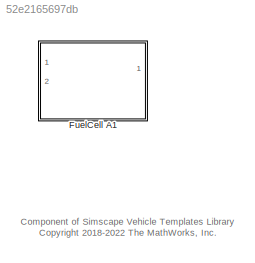
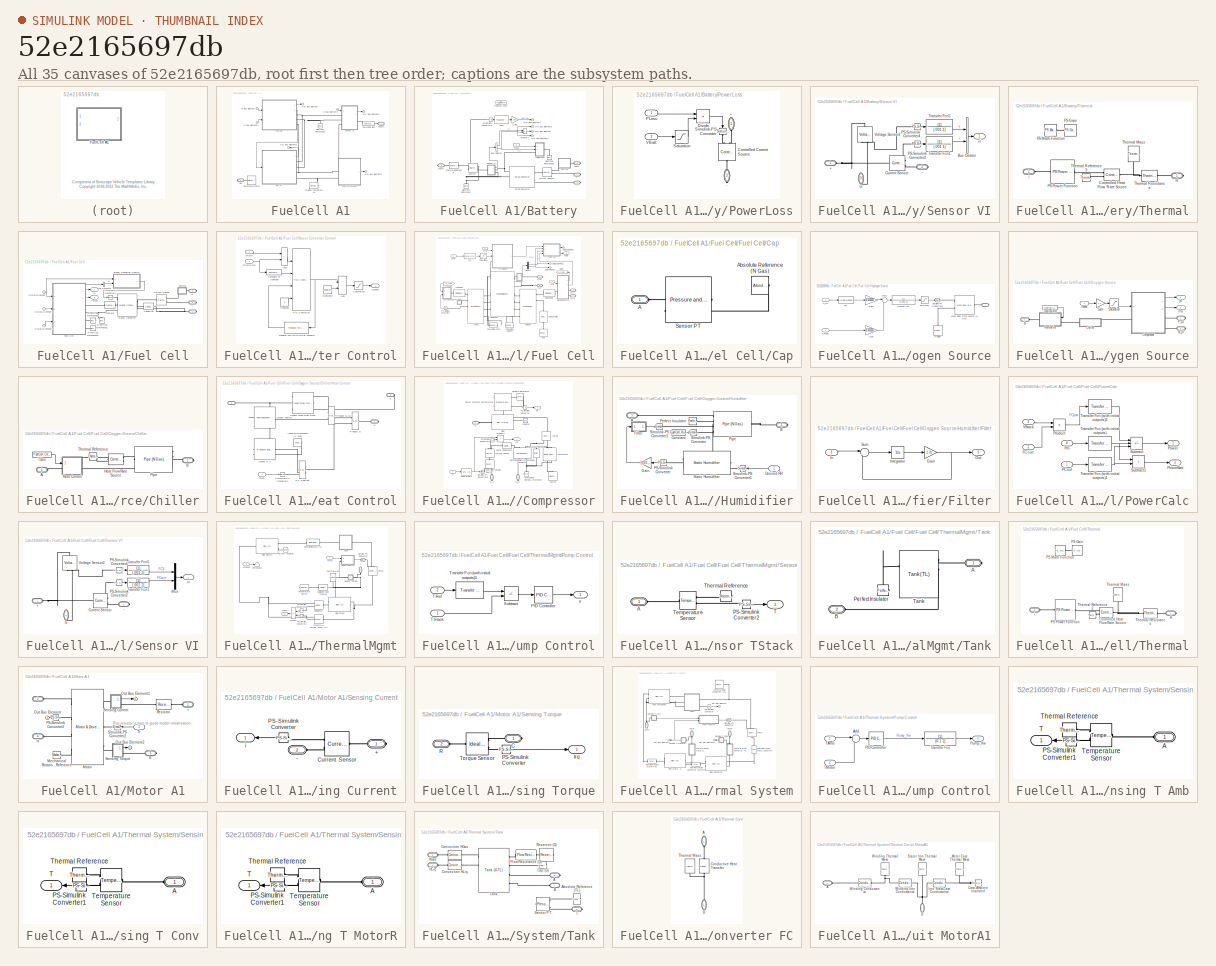
[diagram: thumbnail index - all 35 canvases of the model, root first then tree order]
MODEL slx_52e2165697db
KIND library
CONFIG AbsTol = auto
CONFIG EnableMultiTasking = off
CONFIG FixedStep = auto
CONFIG MaxStep = auto
CONFIG MinStep = auto
CONFIG RelTol = 1e-3
CONFIG SampleTimeConstraint = Unconstrained
CONFIG SolverName = VariableStepAuto
CONFIG StartTime = 0.0
CONFIG StopTime = 10.0
BLOCK [SubSystem] FuelCell A1
  Ports = [2, 1, 0, 0, 0, 1, 1]
  RequestExecContextInheritance = off
BLOCK [Reference] FuelCell A1/Ambient Temperature  REF=fl_lib/Thermal/Thermal Sources/Temperature Source
  Ports = [0, 0, 0, 0, 0, 1]
  SourceBlock = fl_lib/Thermal/Thermal Sources/Temperature Source
  SourceProductBaseCode = PW,SS,VE
  SourceType = Temperature Source
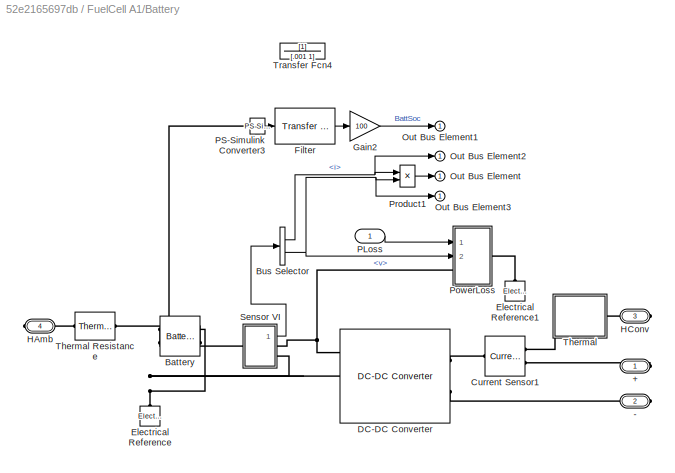
BLOCK [SubSystem] FuelCell A1/Battery
  Ports = [1, 1, 0, 0, 0, 0, 4]
  RequestExecContextInheritance = off
  VariantControl = 0
BLOCK [PMIOPort] FuelCell A1/Battery/+
  Side = Right
BLOCK [PMIOPort] FuelCell A1/Battery/-
  Port = 2
  Side = Right
BLOCK [Reference] FuelCell A1/Battery/Battery  REF=ee_lib/Sources/Battery
(Table-Based)
  NameLocation = top
  Ports = [0, 0, 0, 0, 0, 2, 2]
  SourceBlock = ee_lib/Sources/Battery\n(Table-Based)
  SourceProductBaseCode = PS
  SourceType = Battery\n(Table-Based)
BLOCK [BusSelector] FuelCell A1/Battery/Bus Selector
  OutputSignals = i,v
  Ports = [1, 2]
BLOCK [Reference] FuelCell A1/Battery/Current Sensor1  REF=fl_lib/Electrical/Electrical Sensors/Current Sensor
  Ports = [0, 0, 0, 0, 0, 1, 2]
  SourceBlock = fl_lib/Electrical/Electrical Sensors/Current Sensor
  SourceProductBaseCode = PW,SS,VE
  SourceType = Current Sensor
BLOCK [Reference] FuelCell A1/Battery/DC-DC Converter  REF=ee_lib/Semiconductors &
Converters/Converters/DC-DC Converter
  Ports = [0, 0, 0, 0, 0, 3, 2]
  SourceBlock = ee_lib/Semiconductors &\nConverters/Converters/DC-DC Converter
  SourceProductBaseCode = PS
  SourceType = DC-DC Converter
BLOCK [Reference] FuelCell A1/Battery/Electrical Reference  REF=fl_lib/Electrical/Electrical Elements/Electrical Reference
  NameLocation = right
  Ports = [0, 0, 0, 0, 0, 1]
  SourceBlock = fl_lib/Electrical/Electrical Elements/Electrical Reference
  SourceProductBaseCode = PW,SS,VE
  SourceType = Electrical Reference
BLOCK [Reference] FuelCell A1/Battery/Electrical Reference1  REF=fl_lib/Electrical/Electrical Elements/Electrical Reference
  NameLocation = right
  Ports = [0, 0, 0, 0, 0, 1]
  SourceBlock = fl_lib/Electrical/Electrical Elements/Electrical Reference
  SourceProductBaseCode = PW,SS,VE
  SourceType = Electrical Reference
BLOCK [Reference] FuelCell A1/Battery/Filter  REF=simulink_extras/Additional
Linear/Transfer Fcn
(with initial outputs)
  Ports = [1, 1]
  SourceBlock = simulink_extras/Additional\nLinear/Transfer Fcn\n(with initial outputs)
  SourceProductBaseCode = SL
  SourceType = Transfer Function with Initial Outputs
BLOCK [Gain] FuelCell A1/Battery/Gain2
  Gain = 100
BLOCK [PMIOPort] FuelCell A1/Battery/HAmb
  Port = 4
  Side = Right
BLOCK [PMIOPort] FuelCell A1/Battery/HConv
  Port = 3
  Side = Right
BLOCK [Outport] FuelCell A1/Battery/Out Bus Element
BLOCK [Outport] FuelCell A1/Battery/Out Bus Element1
BLOCK [Outport] FuelCell A1/Battery/Out Bus Element2
BLOCK [Outport] FuelCell A1/Battery/Out Bus Element3
BLOCK [Inport] FuelCell A1/Battery/PLoss
  NameLocation = top
BLOCK [Reference] FuelCell A1/Battery/PS-Simulink Converter3  REF=nesl_utility/PS-Simulink
Converter
  Ports = [0, 1, 0, 0, 0, 1]
  SourceBlock = nesl_utility/PS-Simulink\nConverter
  SourceProductBaseCode = SS,PW,VE
  SourceType = PS-Simulink\nConverter
BLOCK [SubSystem] FuelCell A1/Battery/PowerLoss
  Ports = [2, 0, 0, 0, 0, 1, 1]
  RequestExecContextInheritance = off
BLOCK [PMIOPort] FuelCell A1/Battery/PowerLoss/+
  NameLocation = right
  Side = Left
BLOCK [PMIOPort] FuelCell A1/Battery/PowerLoss/-
  NameLocation = left
  Port = 2
  Side = Right
BLOCK [Reference] FuelCell A1/Battery/PowerLoss/Controlled Current Source  REF=fl_lib/Electrical/Electrical Sources/Controlled Current
Source
  NameLocation = right
  Ports = [0, 0, 0, 0, 0, 1, 2]
  SourceBlock = fl_lib/Electrical/Electrical Sources/Controlled Current\nSource
  SourceProductBaseCode = PW,SS,VE
  SourceType = Controlled Current\nSource
BLOCK [Product] FuelCell A1/Battery/PowerLoss/Divide
  Inputs = */
  Ports = [2, 1]
BLOCK [Inport] FuelCell A1/Battery/PowerLoss/PLoss
BLOCK [Saturate] FuelCell A1/Battery/PowerLoss/Saturation
  LowerLimit = 200
  UpperLimit = inf
BLOCK [Reference] FuelCell A1/Battery/PowerLoss/Simulink-PS Converter  REF=nesl_utility/Simulink-PS
Converter
  NameLocation = left
  Ports = [1, 0, 0, 0, 0, 0, 1]
  SourceBlock = nesl_utility/Simulink-PS\nConverter
  SourceProductBaseCode = SS,PW,VE
  SourceType = Simulink-PS\nConverter
BLOCK [Inport] FuelCell A1/Battery/PowerLoss/VBatt
  Port = 2
BLOCK [Product] FuelCell A1/Battery/Product1
  Ports = [2, 1]
BLOCK [SubSystem] FuelCell A1/Battery/Sensor VI
  NameLocation = top
  Ports = [0, 1, 0, 0, 0, 1, 2]
  RequestExecContextInheritance = off
BLOCK [PMIOPort] FuelCell A1/Battery/Sensor VI/+
  Side = Left
BLOCK [PMIOPort] FuelCell A1/Battery/Sensor VI/-
  Port = 2
  Side = Right
BLOCK [BusCreator] FuelCell A1/Battery/Sensor VI/Bus Creator
  DisplayOption = bar
  InheritFromInputs = on
  Inputs = 2
  Ports = [2, 1]
BLOCK [Reference] FuelCell A1/Battery/Sensor VI/Current Sensor  REF=fl_lib/Electrical/Electrical Sensors/Current Sensor
  Ports = [0, 0, 0, 0, 0, 1, 2]
  SourceBlock = fl_lib/Electrical/Electrical Sensors/Current Sensor
  SourceProductBaseCode = PW,SS,VE
  SourceType = Current Sensor
BLOCK [PMIOPort] FuelCell A1/Battery/Sensor VI/G
  NameLocation = left
  Port = 3
  Side = Right
BLOCK [Reference] FuelCell A1/Battery/Sensor VI/PS-Simulink Converter2  REF=nesl_utility/PS-Simulink
Converter
  Ports = [0, 1, 0, 0, 0, 1]
  SourceBlock = nesl_utility/PS-Simulink\nConverter
  SourceProductBaseCode = SS,PW,VE
  SourceType = PS-Simulink\nConverter
BLOCK [Reference] FuelCell A1/Battery/Sensor VI/PS-Simulink Converter4  REF=nesl_utility/PS-Simulink
Converter
  Ports = [0, 1, 0, 0, 0, 1]
  SourceBlock = nesl_utility/PS-Simulink\nConverter
  SourceProductBaseCode = SS,PW,VE
  SourceType = PS-Simulink\nConverter
BLOCK [TransferFcn] FuelCell A1/Battery/Sensor VI/Transfer Fcn1
  Denominator = [.001 1]
BLOCK [TransferFcn] FuelCell A1/Battery/Sensor VI/Transfer Fcn5
  Denominator = [.001 1]
BLOCK [Reference] FuelCell A1/Battery/Sensor VI/Voltage Sensor2  REF=fl_lib/Electrical/Electrical Sensors/Voltage Sensor
  NameLocation = right
  Ports = [0, 0, 0, 0, 0, 1, 2]
  SourceBlock = fl_lib/Electrical/Electrical Sensors/Voltage Sensor
  SourceProductBaseCode = PW,SS,VE
  SourceType = Voltage Sensor
BLOCK [Outport] FuelCell A1/Battery/Sensor VI/vi
BLOCK [SubSystem] FuelCell A1/Battery/Thermal
  Ports = [0, 0, 0, 0, 0, 1, 1]
  RequestExecContextInheritance = off
BLOCK [Reference] FuelCell A1/Battery/Thermal Resistance  REF=fl_lib/Thermal/Thermal Elements/Thermal Resistance
  Ports = [0, 0, 0, 0, 0, 1, 1]
  SourceBlock = fl_lib/Thermal/Thermal Elements/Thermal Resistance
  SourceProductBaseCode = PW,SS,VE
  SourceType = Thermal Resistance
BLOCK [Reference] FuelCell A1/Battery/Thermal/Controlled Heat Flow Rate Source  REF=fl_lib/Thermal/Thermal Sources/Controlled Heat Flow
Rate Source
  Ports = [0, 0, 0, 0, 0, 1, 2]
  SourceBlock = fl_lib/Thermal/Thermal Sources/Controlled Heat Flow\nRate Source
  SourceProductBaseCode = PW,SS,VE
  SourceType = Controlled Heat Flow\nRate Source
BLOCK [PMIOPort] FuelCell A1/Battery/Thermal/H
  Side = Right
BLOCK [Reference] FuelCell A1/Battery/Thermal/PS Gain  REF=fl_lib/Physical Signals/Functions/PS Gain
  Commented = on
  Ports = [0, 0, 0, 0, 0, 1, 1]
  SourceBlock = fl_lib/Physical Signals/Functions/PS Gain
  SourceProductBaseCode = PW,SS,VE
  SourceType = PS Gain
BLOCK [Reference] FuelCell A1/Battery/Thermal/PS Math Function  REF=fl_lib/Physical Signals/Functions/PS Math Function
  Commented = on
  Ports = [0, 0, 0, 0, 0, 1, 1]
  SourceBlock = fl_lib/Physical Signals/Functions/PS Math Function
  SourceProductBaseCode = PW,SS,VE
  SourceType = PS Math Function
BLOCK [Reference] FuelCell A1/Battery/Thermal/PS Power Function  REF=customMath_lib/PS Power Function
  Ports = [0, 0, 0, 0, 0, 1, 1]
  SourceBlock = customMath_lib/PS Power Function
  SourceType = PS Power Function
BLOCK [Reference] FuelCell A1/Battery/Thermal/Thermal Mass  REF=fl_lib/Thermal/Thermal Elements/Thermal Mass
  NameLocation = right
  Ports = [0, 0, 0, 0, 0, 1]
  SourceBlock = fl_lib/Thermal/Thermal Elements/Thermal Mass
  SourceProductBaseCode = PW,SS,VE
  SourceType = Thermal Mass
BLOCK [Reference] FuelCell A1/Battery/Thermal/Thermal Reference3  REF=fl_lib/Thermal/Thermal Elements/Thermal Reference
  Ports = [0, 0, 0, 0, 0, 1]
  SourceBlock = fl_lib/Thermal/Thermal Elements/Thermal Reference
  SourceProductBaseCode = PW,SS,VE
  SourceType = Thermal Reference
BLOCK [Reference] FuelCell A1/Battery/Thermal/Thermal Resistance  REF=fl_lib/Thermal/Thermal Elements/Thermal Resistance
  Ports = [0, 0, 0, 0, 0, 1, 1]
  SourceBlock = fl_lib/Thermal/Thermal Elements/Thermal Resistance
  SourceProductBaseCode = PW,SS,VE
  SourceType = Thermal Resistance
BLOCK [PMIOPort] FuelCell A1/Battery/Thermal/i
  Port = 2
  Side = Left
BLOCK [TransferFcn] FuelCell A1/Battery/Transfer Fcn4
  Commented = on
  Denominator = [.001 1]
BLOCK [Reference] FuelCell A1/Electrical Reference1  REF=fl_lib/Electrical/Electrical Elements/Electrical Reference
  NameLocation = right
  Ports = [0, 0, 0, 0, 0, 1]
  SourceBlock = fl_lib/Electrical/Electrical Elements/Electrical Reference
  SourceProductBaseCode = PW,SS,VE
  SourceType = Electrical Reference
BLOCK [SubSystem] FuelCell A1/Fuel Cell
  Ports = [2, 2, 0, 0, 0, 0, 3]
  RequestExecContextInheritance = off
  VariantControl = 0
BLOCK [PMIOPort] FuelCell A1/Fuel Cell/+
  Side = Right
BLOCK [PMIOPort] FuelCell A1/Fuel Cell/-
  Port = 2
  Side = Right
BLOCK [Reference] FuelCell A1/Fuel Cell/Boost Converter  REF=ee_lib/Semiconductors &
Converters/Converters/Boost Converter
  Ports = [0, 0, 0, 0, 0, 3, 2]
  SourceBlock = ee_lib/Semiconductors &\nConverters/Converters/Boost Converter
  SourceProductBaseCode = PS
  SourceType = Boost Converter
BLOCK [SubSystem] FuelCell A1/Fuel Cell/Boost Converter Control
  NameLocation = top
  Ports = [2, 1]
  RequestExecContextInheritance = off
BLOCK [Sum] FuelCell A1/Fuel Cell/Boost Converter Control/Add
  IconShape = rectangular
  Ports = [2, 1]
BLOCK [Sum] FuelCell A1/Fuel Cell/Boost Converter Control/Add1
  IconShape = rectangular
  Inputs = -+
  Ports = [2, 1]
BLOCK [Reference] FuelCell A1/Fuel Cell/Boost Converter Control/Compare To Constant  REF=simulink/Logic and Bit
Operations/Compare
To Constant
  Ports = [1, 1]
  SourceBlock = simulink/Logic and Bit\nOperations/Compare\nTo Constant
  SourceProductBaseCode = SL
  SourceType = Compare To Constant
BLOCK [Constant] FuelCell A1/Fuel Cell/Boost Converter Control/Constant
  Value = 0
BLOCK [Constant] FuelCell A1/Fuel Cell/Boost Converter Control/Constant3
  Value = FuelCell.ConverterB.Control.Bias.Value
BLOCK [Inport] FuelCell A1/Fuel Cell/Boost Converter Control/FCcurr
  Port = 2
BLOCK [Inport] FuelCell A1/Fuel Cell/Boost Converter Control/FCcurrCMD
BLOCK [Reference] FuelCell A1/Fuel Cell/Boost Converter Control/PID Controller  REF=slpidlib/PID Controller
  Ports = [4, 1]
  SourceBlock = slpidlib/PID Controller
  SourceProductBaseCode = SL
  SourceType = PID 1dof
BLOCK [Saturate] FuelCell A1/Fuel Cell/Boost Converter Control/Saturation
  LowerLimit = 0
  UpperLimit = 1
  ZeroCross = off
BLOCK [Reference] FuelCell A1/Fuel Cell/Boost Converter Control/Transfer Fcn (with initial outputs)  REF=simulink_extras/Additional
Linear/Transfer Fcn
(with initial outputs)
  Ports = [1, 1]
  SourceBlock = simulink_extras/Additional\nLinear/Transfer Fcn\n(with initial outputs)
  SourceProductBaseCode = SL
  SourceType = Transfer Function with Initial Outputs
BLOCK [Outport] FuelCell A1/Fuel Cell/Boost Converter Control/u_boost
BLOCK [BusSelector] FuelCell A1/Fuel Cell/Bus Selector
  NameLocation = top
  OutputSignals = i
  Ports = [1, 1]
BLOCK [Reference] FuelCell A1/Fuel Cell/Capacitor  REF=fl_lib/Electrical/Electrical Elements/Capacitor
  Ports = [0, 0, 0, 0, 0, 1, 1]
  SourceBlock = fl_lib/Electrical/Electrical Elements/Capacitor
  SourceProductBaseCode = PW,SS,VE
  SourceType = Capacitor
BLOCK [Reference] FuelCell A1/Fuel Cell/Current Sensor  REF=fl_lib/Electrical/Electrical Sensors/Current Sensor
  NameLocation = top
  Ports = [0, 0, 0, 0, 0, 1, 2]
  SourceBlock = fl_lib/Electrical/Electrical Sensors/Current Sensor
  SourceProductBaseCode = PW,SS,VE
  SourceType = Current Sensor
BLOCK [Reference] FuelCell A1/Fuel Cell/Electrical Reference1  REF=fl_lib/Electrical/Electrical Elements/Electrical Reference
  NameLocation = right
  Ports = [0, 0, 0, 0, 0, 1]
  SourceBlock = fl_lib/Electrical/Electrical Elements/Electrical Reference
  SourceProductBaseCode = PW,SS,VE
  SourceType = Electrical Reference
BLOCK [Reference] FuelCell A1/Fuel Cell/Electrical Reference4  REF=fl_lib/Electrical/Electrical Elements/Electrical Reference
  NameLocation = top
  Ports = [0, 0, 0, 0, 0, 1]
  SourceBlock = fl_lib/Electrical/Electrical Elements/Electrical Reference
  SourceProductBaseCode = PW,SS,VE
  SourceType = Electrical Reference
BLOCK [Reference] FuelCell A1/Fuel Cell/Electrical Reference5  REF=fl_lib/Electrical/Electrical Elements/Electrical Reference
  NameLocation = top
  Ports = [0, 0, 0, 0, 0, 1]
  SourceBlock = fl_lib/Electrical/Electrical Elements/Electrical Reference
  SourceProductBaseCode = PW,SS,VE
  SourceType = Electrical Reference
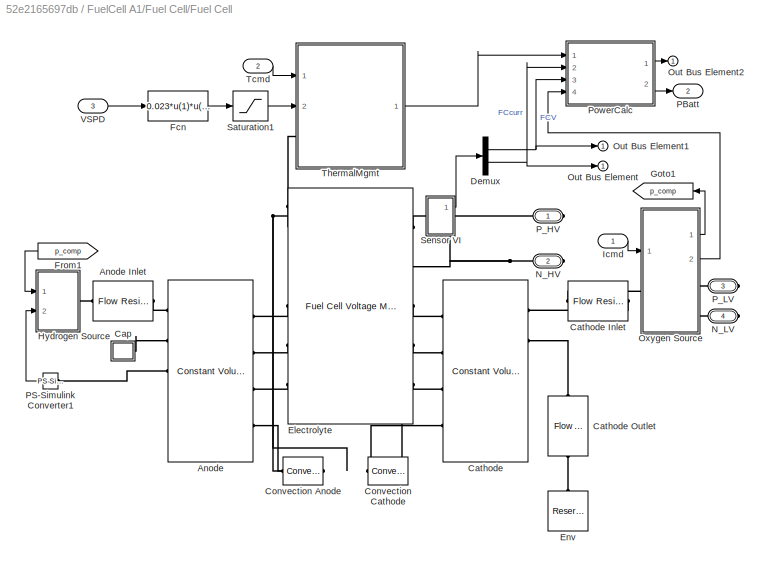
BLOCK [SubSystem] FuelCell A1/Fuel Cell/Fuel Cell
  Ports = [3, 2, 0, 0, 0, 0, 4]
  RequestExecContextInheritance = off
BLOCK [Reference] FuelCell A1/Fuel Cell/Fuel Cell/Anode  REF=GasN_lib/Constant Volume
Chamber (N Gas)
  Ports = [0, 0, 0, 0, 0, 4, 5]
  SourceBlock = GasN_lib/Constant Volume\nChamber (N Gas)
  SourceType = Constant Volume\nChamber (N Gas)
BLOCK [Reference] FuelCell A1/Fuel Cell/Fuel Cell/Anode Inlet  REF=GasN_lib/Flow Resistance (N
Gas)
  Ports = [0, 0, 0, 0, 0, 1, 1]
  SourceBlock = GasN_lib/Flow Resistance (N\nGas)
  SourceType = Flow Resistance (N\nGas)
BLOCK [SubSystem] FuelCell A1/Fuel Cell/Fuel Cell/Cap
  Ports = [0, 0, 0, 0, 0, 1]
  RequestExecContextInheritance = off
BLOCK [PMIOPort] FuelCell A1/Fuel Cell/Fuel Cell/Cap/A
  Side = Left
BLOCK [Reference] FuelCell A1/Fuel Cell/Fuel Cell/Cap/Absolute Reference (N Gas)  REF=GasN_lib/Absolute Reference
(N Gas)
  NameLocation = top
  Ports = [0, 0, 0, 0, 0, 1]
  SourceBlock = GasN_lib/Absolute Reference\n(N Gas)
  SourceType = Absolute Reference\n(N Gas)
BLOCK [Reference] FuelCell A1/Fuel Cell/Fuel Cell/Cap/Sensor P T  REF=GasN_lib/Pressure and
Temperature Sensor
(N Gas)
  Ports = [0, 0, 0, 0, 0, 1, 3]
  SourceBlock = GasN_lib/Pressure and\nTemperature Sensor\n(N Gas)
  SourceType = Pressure and\nTemperature Sensor\n(N Gas)
BLOCK [Reference] FuelCell A1/Fuel Cell/Fuel Cell/Cathode  REF=GasN_lib/Constant Volume
Chamber (N Gas)
  Ports = [0, 0, 0, 0, 0, 4, 5]
  SourceBlock = GasN_lib/Constant Volume\nChamber (N Gas)
  SourceType = Constant Volume\nChamber (N Gas)
BLOCK [Reference] FuelCell A1/Fuel Cell/Fuel Cell/Cathode Inlet  REF=GasN_lib/Flow Resistance (N
Gas)
  Ports = [0, 0, 0, 0, 0, 1, 1]
  SourceBlock = GasN_lib/Flow Resistance (N\nGas)
  SourceType = Flow Resistance (N\nGas)
BLOCK [Reference] FuelCell A1/Fuel Cell/Fuel Cell/Cathode Outlet  REF=GasN_lib/Flow Resistance (N
Gas)
  NameLocation = right
  Ports = [0, 0, 0, 0, 0, 1, 1]
  SourceBlock = GasN_lib/Flow Resistance (N\nGas)
  SourceType = Flow Resistance (N\nGas)
BLOCK [Reference] FuelCell A1/Fuel Cell/Fuel Cell/Convection Anode  REF=fl_lib/Thermal/Thermal Elements/Convective Heat
Transfer
  Ports = [0, 0, 0, 0, 0, 1, 1]
  SourceBlock = fl_lib/Thermal/Thermal Elements/Convective Heat\nTransfer
  SourceProductBaseCode = PW,SS,VE
  SourceType = Convective Heat\nTransfer
BLOCK [Reference] FuelCell A1/Fuel Cell/Fuel Cell/Convection Cathode  REF=fl_lib/Thermal/Thermal Elements/Convective Heat
Transfer
  Ports = [0, 0, 0, 0, 0, 1, 1]
  SourceBlock = fl_lib/Thermal/Thermal Elements/Convective Heat\nTransfer
  SourceProductBaseCode = PW,SS,VE
  SourceType = Convective Heat\nTransfer
BLOCK [Demux] FuelCell A1/Fuel Cell/Fuel Cell/Demux
  Outputs = 2
  Ports = [1, 2]
BLOCK [Reference] FuelCell A1/Fuel Cell/Fuel Cell/Electrolyte  REF=gn_supplement_lib/fuel_cell/Fuel Cell Voltage
Model
  Ports = [0, 0, 0, 0, 0, 5, 5]
  SourceBlock = gn_supplement_lib/fuel_cell/Fuel Cell Voltage\nModel
  SourceType = Fuel Cell Voltage\nModel
BLOCK [Reference] FuelCell A1/Fuel Cell/Fuel Cell/Env  REF=GasN_lib/Reservoir (N gas)
  NameLocation = right
  Ports = [0, 0, 0, 0, 0, 1]
  SourceBlock = GasN_lib/Reservoir (N gas)
  SourceType = Reservoir (N gas)
BLOCK [Fcn] FuelCell A1/Fuel Cell/Fuel Cell/Fcn
  Expr = 0.023*u(1)*u(1)-0.05*u(1)
BLOCK [From] FuelCell A1/Fuel Cell/Fuel Cell/From1
  GotoTag = p_comp
BLOCK [Goto] FuelCell A1/Fuel Cell/Fuel Cell/Goto1
  GotoTag = p_comp
BLOCK [SubSystem] FuelCell A1/Fuel Cell/Fuel Cell/Hydrogen Source
  Ports = [2, 0, 0, 0, 0, 0, 1]
  RequestExecContextInheritance = off
BLOCK [PMIOPort] FuelCell A1/Fuel Cell/Fuel Cell/Hydrogen Source/A
  Side = Right
BLOCK [Fcn] FuelCell A1/Fuel Cell/Fuel Cell/Hydrogen Source/Fcn
  Expr = (0.95*u+3000)
BLOCK [Gain] FuelCell A1/Fuel Cell/Fuel Cell/Hydrogen Source/Gain
  Gain = 1/101325
BLOCK [Gain] FuelCell A1/Fuel Cell/Fuel Cell/Hydrogen Source/Gain1
  Gain = 1/101325
BLOCK [Reference] FuelCell A1/Fuel Cell/Fuel Cell/Hydrogen Source/H2Side  REF=GasN_lib/Reservoir (N gas)
  NameLocation = left
  Ports = [0, 0, 0, 0, 0, 1]
  SourceBlock = GasN_lib/Reservoir (N gas)
  SourceType = Reservoir (N gas)
BLOCK [Reference] FuelCell A1/Fuel Cell/Fuel Cell/Hydrogen Source/Mass Flow Rate Source (N Gas)  REF=GasN_lib/Mass Flow Rate
Source (N Gas)
  Ports = [0, 0, 0, 0, 0, 2, 1]
  SourceBlock = GasN_lib/Mass Flow Rate\nSource (N Gas)
  SourceType = Mass Flow Rate\nSource (N Gas)
BLOCK [Inport] FuelCell A1/Fuel Cell/Fuel Cell/Hydrogen Source/P_IM
BLOCK [Inport] FuelCell A1/Fuel Cell/Fuel Cell/Hydrogen Source/P_anode
  Port = 2
BLOCK [Saturate] FuelCell A1/Fuel Cell/Fuel Cell/Hydrogen Source/Saturation
  LowerLimit = 0.000001
  UpperLimit = .1
  ZeroCross = off
BLOCK [Reference] FuelCell A1/Fuel Cell/Fuel Cell/Hydrogen Source/Simulink-PS Converter5  REF=nesl_utility/Simulink-PS
Converter
  Ports = [1, 0, 0, 0, 0, 0, 1]
  SourceBlock = nesl_utility/Simulink-PS\nConverter
  SourceProductBaseCode = SS,PW,VE
  SourceType = Simulink-PS\nConverter
BLOCK [Sum] FuelCell A1/Fuel Cell/Fuel Cell/Hydrogen Source/Sum2
  InputSameDT = on
  Inputs = |+-
  OutDataTypeStr = Inherit: Same as first input
  Ports = [2, 1]
  SaturateOnIntegerOverflow = on
BLOCK [TransferFcn] FuelCell A1/Fuel Cell/Fuel Cell/Hydrogen Source/Transfer Fcn
  Denominator = [0.001 1]
BLOCK [Inport] FuelCell A1/Fuel Cell/Fuel Cell/Icmd
BLOCK [PMIOPort] FuelCell A1/Fuel Cell/Fuel Cell/N_HV
  Port = 2
  Side = Right
BLOCK [PMIOPort] FuelCell A1/Fuel Cell/Fuel Cell/N_LV
  Port = 4
  Side = Right
BLOCK [Outport] FuelCell A1/Fuel Cell/Fuel Cell/Out Bus Element
BLOCK [Outport] FuelCell A1/Fuel Cell/Fuel Cell/Out Bus Element1
BLOCK [Outport] FuelCell A1/Fuel Cell/Fuel Cell/Out Bus Element2
BLOCK [SubSystem] FuelCell A1/Fuel Cell/Fuel Cell/Oxygen Source
  Ports = [1, 2, 0, 0, 0, 1, 2]
  RequestExecContextInheritance = off
BLOCK [PMIOPort] FuelCell A1/Fuel Cell/Fuel Cell/Oxygen Source/B
  Side = Left
BLOCK [SubSystem] FuelCell A1/Fuel Cell/Fuel Cell/Oxygen Source/Chiller
  Ports = [0, 0, 0, 0, 0, 1, 1]
  RequestExecContextInheritance = off
BLOCK [PMIOPort] FuelCell A1/Fuel Cell/Fuel Cell/Oxygen Source/Chiller/A
  Side = Left
BLOCK [PMIOPort] FuelCell A1/Fuel Cell/Fuel Cell/Oxygen Source/Chiller/B
  Port = 2
  Side = Right
BLOCK [SubSystem] FuelCell A1/Fuel Cell/Fuel Cell/Oxygen Source/Chiller/Heat Control
  Ports = [1, 0, 0, 0, 0, 1, 2]
  RequestExecContextInheritance = off
BLOCK [PMIOPort] FuelCell A1/Fuel Cell/Fuel Cell/Oxygen Source/Chiller/Heat Control/A
  Side = Left
BLOCK [Reference] FuelCell A1/Fuel Cell/Fuel Cell/Oxygen Source/Chiller/Heat Control/Absolute Reference (N Gas)  REF=GasN_lib/Absolute Reference
(N Gas)
  NameLocation = top
  Ports = [0, 0, 0, 0, 0, 1]
  SourceBlock = GasN_lib/Absolute Reference\n(N Gas)
  SourceType = Absolute Reference\n(N Gas)
BLOCK [PMIOPort] FuelCell A1/Fuel Cell/Fuel Cell/Oxygen Source/Chiller/Heat Control/B
  Port = 3
  Side = Right
BLOCK [Reference] FuelCell A1/Fuel Cell/Fuel Cell/Oxygen Source/Chiller/Heat Control/PS Subtract  REF=customMath_lib/PS Subtract
  NameLocation = top
  Ports = [0, 0, 0, 0, 0, 2, 1]
  SourceBlock = customMath_lib/PS Subtract
  SourceType = PS Subtract
BLOCK [Reference] FuelCell A1/Fuel Cell/Fuel Cell/Oxygen Source/Chiller/Heat Control/Product M cp  REF=customMath_lib/PS Custom Product
  Ports = [0, 0, 0, 0, 0, 2, 1]
  SourceBlock = customMath_lib/PS Custom Product
  SourceType = PS Custom Product
BLOCK [Reference] FuelCell A1/Fuel Cell/Fuel Cell/Oxygen Source/Chiller/Heat Control/Product Q  REF=customMath_lib/PS Custom Product
  Ports = [0, 0, 0, 0, 0, 2, 1]
  SourceBlock = customMath_lib/PS Custom Product
  SourceType = PS Custom Product
BLOCK [PMIOPort] FuelCell A1/Fuel Cell/Fuel Cell/Oxygen Source/Chiller/Heat Control/Q
  Port = 2
  Side = Right
BLOCK [Reference] FuelCell A1/Fuel Cell/Fuel Cell/Oxygen Source/Chiller/Heat Control/Sensor Mass Flow Rate  REF=GasN_lib/Mass Flow Rate
Sensor (N Gas)
  NameLocation = top
  Ports = [0, 0, 0, 0, 0, 1, 4]
  SourceBlock = GasN_lib/Mass Flow Rate\nSensor (N Gas)
  SourceType = Mass Flow Rate\nSensor (N Gas)
BLOCK [Reference] FuelCell A1/Fuel Cell/Fuel Cell/Oxygen Source/Chiller/Heat Control/Sensor P T  REF=GasN_lib/Pressure and
Temperature Sensor
(N Gas)
  Ports = [0, 0, 0, 0, 0, 1, 3]
  SourceBlock = GasN_lib/Pressure and\nTemperature Sensor\n(N Gas)
  SourceType = Pressure and\nTemperature Sensor\n(N Gas)
BLOCK [Reference] FuelCell A1/Fuel Cell/Fuel Cell/Oxygen Source/Chiller/Heat Control/Sensor Thermo  REF=GasN_lib/Thermodynamic
Properties Sensor (N
Gas)
  Ports = [0, 0, 0, 0, 0, 1, 4]
  SourceBlock = GasN_lib/Thermodynamic\nProperties Sensor (N\nGas)
  SourceType = Thermodynamic\nProperties Sensor (N\nGas)
BLOCK [Reference] FuelCell A1/Fuel Cell/Fuel Cell/Oxygen Source/Chiller/Heat Control/Simulink-PS Converter4  REF=nesl_utility/Simulink-PS
Converter
  Ports = [1, 0, 0, 0, 0, 0, 1]
  SourceBlock = nesl_utility/Simulink-PS\nConverter
  SourceProductBaseCode = SS,PW,VE
  SourceType = Simulink-PS\nConverter
BLOCK [Inport] FuelCell A1/Fuel Cell/Fuel Cell/Oxygen Source/Chiller/Heat Control/TDes
BLOCK [Reference] FuelCell A1/Fuel Cell/Fuel Cell/Oxygen Source/Chiller/Heat Flow Rate Source  REF=fl_lib/Thermal/Thermal Sources/Controlled Heat Flow
Rate Source
  NameLocation = top
  Ports = [0, 0, 0, 0, 0, 1, 2]
  SourceBlock = fl_lib/Thermal/Thermal Sources/Controlled Heat Flow\nRate Source
  SourceProductBaseCode = PW,SS,VE
  SourceType = Controlled Heat Flow\nRate Source
BLOCK [Reference] FuelCell A1/Fuel Cell/Fuel Cell/Oxygen Source/Chiller/Pipe  REF=GasN_lib/Pipe (N Gas)
  Ports = [0, 0, 0, 0, 0, 4, 1]
  SourceBlock = GasN_lib/Pipe (N Gas)
  SourceType = Pipe (N Gas)
BLOCK [Constant] FuelCell A1/Fuel Cell/Fuel Cell/Oxygen Source/Chiller/Tdes
  Value = FuelCell.Chiller.Tdesired.Value
BLOCK [Reference] FuelCell A1/Fuel Cell/Fuel Cell/Oxygen Source/Chiller/Thermal Reference  REF=fl_lib/Thermal/Thermal Elements/Thermal Reference
  Ports = [0, 0, 0, 0, 0, 1]
  SourceBlock = fl_lib/Thermal/Thermal Elements/Thermal Reference
  SourceProductBaseCode = PW,SS,VE
  SourceType = Thermal Reference
BLOCK [SubSystem] FuelCell A1/Fuel Cell/Fuel Cell/Oxygen Source/Compressor
  Ports = [1, 2, 0, 0, 0, 1, 2]
  RequestExecContextInheritance = off
BLOCK [Reference] FuelCell A1/Fuel Cell/Fuel Cell/Oxygen Source/Compressor/Absolute Reference  REF=GasN_lib/Absolute Reference
(N Gas)
  NameLocation = top
  Ports = [0, 0, 0, 0, 0, 1]
  SourceBlock = GasN_lib/Absolute Reference\n(N Gas)
  SourceType = Absolute Reference\n(N Gas)
BLOCK [PMIOPort] FuelCell A1/Fuel Cell/Fuel Cell/Oxygen Source/Compressor/B
  NameLocation = top
  Side = Left
BLOCK [Reference] FuelCell A1/Fuel Cell/Fuel Cell/Oxygen Source/Compressor/Compressor  REF=GasN_lib/Basic Compressor (N
Gas)
  NameLocation = right
  Ports = [0, 0, 0, 0, 0, 2, 2]
  SourceBlock = GasN_lib/Basic Compressor (N\nGas)
  SourceType = Basic Compressor (N\nGas)
BLOCK [Reference] FuelCell A1/Fuel Cell/Fuel Cell/Oxygen Source/Compressor/Controlled Voltage Source  REF=fl_lib/Electrical/Electrical Sources/Controlled Voltage
Source
  NameLocation = right
  Ports = [0, 0, 0, 0, 0, 1, 2]
  SourceBlock = fl_lib/Electrical/Electrical Sources/Controlled Voltage\nSource
  SourceProductBaseCode = PW,SS,VE
  SourceType = Controlled Voltage\nSource
BLOCK [Reference] FuelCell A1/Fuel Cell/Fuel Cell/Oxygen Source/Compressor/Current Sensor  REF=fl_lib/Electrical/Electrical Sensors/Current Sensor
  NameLocation = right
  Ports = [0, 0, 0, 0, 0, 1, 2]
  SourceBlock = fl_lib/Electrical/Electrical Sensors/Current Sensor
  SourceProductBaseCode = PW,SS,VE
  SourceType = Current Sensor
BLOCK [Fcn] FuelCell A1/Fuel Cell/Fuel Cell/Oxygen Source/Compressor/Feedforward
  Expr = 0.5*u + 0.1
BLOCK [Reference] FuelCell A1/Fuel Cell/Fuel Cell/Oxygen Source/Compressor/Inertia  REF=fl_lib/Mechanical/Rotational Elements/Inertia
  NameLocation = top
  Ports = [0, 0, 0, 0, 0, 1]
  SourceBlock = fl_lib/Mechanical/Rotational Elements/Inertia
  SourceProductBaseCode = PW,SS,VE
  SourceType = Inertia
BLOCK [Reference] FuelCell A1/Fuel Cell/Fuel Cell/Oxygen Source/Compressor/Insulator  REF=fl_lib/Thermal/Thermal Elements/Perfect Insulator
  Ports = [0, 0, 0, 0, 0, 1]
  SourceBlock = fl_lib/Thermal/Thermal Elements/Perfect Insulator
  SourceProductBaseCode = PW,SS,VE
  SourceType = Perfect Insulator
BLOCK [Reference] FuelCell A1/Fuel Cell/Fuel Cell/Oxygen Source/Compressor/Mechanical Rotational Reference3  REF=fl_lib/Mechanical/Rotational Elements/Mechanical
Rotational Reference
  NameLocation = right
  Ports = [0, 0, 0, 0, 0, 1]
  SourceBlock = fl_lib/Mechanical/Rotational Elements/Mechanical\nRotational Reference
  SourceProductBaseCode = PW,SS,VE
  SourceType = Mechanical\nRotational Reference
BLOCK [PMIOPort] FuelCell A1/Fuel Cell/Fuel Cell/Oxygen Source/Compressor/N_LV
  NameLocation = left
  Port = 3
  Side = Right
BLOCK [Reference] FuelCell A1/Fuel Cell/Fuel Cell/Oxygen Source/Compressor/PS-Simulink Converter  REF=nesl_utility/PS-Simulink
Converter
  Ports = [0, 1, 0, 0, 0, 1]
  SourceBlock = nesl_utility/PS-Simulink\nConverter
  SourceProductBaseCode = SS,PW,VE
  SourceType = PS-Simulink\nConverter
BLOCK [Reference] FuelCell A1/Fuel Cell/Fuel Cell/Oxygen Source/Compressor/PS-Simulink Converter1  REF=nesl_utility/PS-Simulink
Converter
  Ports = [0, 1, 0, 0, 0, 1]
  SourceBlock = nesl_utility/PS-Simulink\nConverter
  SourceProductBaseCode = SS,PW,VE
  SourceType = PS-Simulink\nConverter
BLOCK [PMIOPort] FuelCell A1/Fuel Cell/Fuel Cell/Oxygen Source/Compressor/P_LV
  NameLocation = right
  Port = 2
  Side = Right
BLOCK [Reference] FuelCell A1/Fuel Cell/Fuel Cell/Oxygen Source/Compressor/Pipe  REF=GasN_lib/Pipe (N Gas)
  Ports = [0, 0, 0, 0, 0, 4, 1]
  SourceBlock = GasN_lib/Pipe (N Gas)
  SourceType = Pipe (N Gas)
BLOCK [Outport] FuelCell A1/Fuel Cell/Fuel Cell/Oxygen Source/Compressor/Pm
  Port = 2
BLOCK [Product] FuelCell A1/Fuel Cell/Fuel Cell/Oxygen Source/Compressor/Product1
  Ports = [2, 1]
BLOCK [Reference] FuelCell A1/Fuel Cell/Fuel Cell/Oxygen Source/Compressor/Rotational Damper  REF=fl_lib/Mechanical/Rotational Elements/Rotational Damper
  NameLocation = right
  Ports = [0, 0, 0, 0, 0, 1, 1]
  SourceBlock = fl_lib/Mechanical/Rotational Elements/Rotational Damper
  SourceProductBaseCode = PW,SS,VE
  SourceType = Rotational Damper
BLOCK [Reference] FuelCell A1/Fuel Cell/Fuel Cell/Oxygen Source/Compressor/Rotational Electromechanical Converter  REF=fl_lib/Electrical/Electrical Elements/Rotational
Electromechanical
Converter
  NameLocation = right
  Ports = [0, 0, 0, 0, 0, 2, 2]
  SourceBlock = fl_lib/Electrical/Electrical Elements/Rotational\nElectromechanical\nConverter
  SourceProductBaseCode = PW,SS,VE
  SourceType = Rotational\nElectromechanical\nConverter
BLOCK [Reference] FuelCell A1/Fuel Cell/Fuel Cell/Oxygen Source/Compressor/Rotor Resistance  REF=fl_lib/Electrical/Electrical Elements/Resistor
  Ports = [0, 0, 0, 0, 0, 1, 1]
  SourceBlock = fl_lib/Electrical/Electrical Elements/Resistor
  SourceProductBaseCode = PW,SS,VE
  SourceType = Resistor
  Tag = Factory Generic
BLOCK [Reference] FuelCell A1/Fuel Cell/Fuel Cell/Oxygen Source/Compressor/Sensor Pressure Temperature  REF=GasN_lib/Pressure and
Temperature Sensor
(N Gas)
  Ports = [0, 0, 0, 0, 0, 1, 3]
  SourceBlock = GasN_lib/Pressure and\nTemperature Sensor\n(N Gas)
  SourceType = Pressure and\nTemperature Sensor\n(N Gas)
BLOCK [Reference] FuelCell A1/Fuel Cell/Fuel Cell/Oxygen Source/Compressor/Simulink-PS Converter6  REF=nesl_utility/Simulink-PS
Converter
  Ports = [1, 0, 0, 0, 0, 0, 1]
  SourceBlock = nesl_utility/Simulink-PS\nConverter
  SourceProductBaseCode = SS,PW,VE
  SourceType = Simulink-PS\nConverter
BLOCK [Reference] FuelCell A1/Fuel Cell/Fuel Cell/Oxygen Source/Compressor/Source  REF=GasN_lib/Reservoir (N gas)
  NameLocation = right
  Ports = [0, 0, 0, 0, 0, 1]
  SourceBlock = GasN_lib/Reservoir (N gas)
  SourceType = Reservoir (N gas)
BLOCK [Inport] FuelCell A1/Fuel Cell/Fuel Cell/Oxygen Source/Compressor/V
BLOCK [Outport] FuelCell A1/Fuel Cell/Fuel Cell/Oxygen Source/Compressor/pT
BLOCK [Constant] FuelCell A1/Fuel Cell/Fuel Cell/Oxygen Source/Desired RH
  Value = FuelCell.Humidifier.relativeHdes.Value
BLOCK [Gain] FuelCell A1/Fuel Cell/Fuel Cell/Oxygen Source/Gain
  Gain = 1.1
BLOCK [SubSystem] FuelCell A1/Fuel Cell/Fuel Cell/Oxygen Source/Humidifier
  Ports = [1, 0, 0, 0, 0, 1, 1]
  RequestExecContextInheritance = off
BLOCK [PMIOPort] FuelCell A1/Fuel Cell/Fuel Cell/Oxygen Source/Humidifier/A
  NameLocation = top
  Side = Left
BLOCK [PMIOPort] FuelCell A1/Fuel Cell/Fuel Cell/Oxygen Source/Humidifier/B
  Port = 2
  Side = Right
BLOCK [Constant] FuelCell A1/Fuel Cell/Fuel Cell/Oxygen Source/Humidifier/Constant
  Value = FuelCell.Humidifier.Tin.Value
BLOCK [Inport] FuelCell A1/Fuel Cell/Fuel Cell/Oxygen Source/Humidifier/Desired RH
BLOCK [SubSystem] FuelCell A1/Fuel Cell/Fuel Cell/Oxygen Source/Humidifier/Filter
  Ports = [1, 1]
  RequestExecContextInheritance = off
BLOCK [Gain] FuelCell A1/Fuel Cell/Fuel Cell/Oxygen Source/Humidifier/Filter/Gain
  Gain = 1./b
BLOCK [Inport] FuelCell A1/Fuel Cell/Fuel Cell/Oxygen Source/Humidifier/Filter/In
BLOCK [Integrator] FuelCell A1/Fuel Cell/Fuel Cell/Oxygen Source/Humidifier/Filter/Integrator
  InitialCondition = x_initial.*b
  Ports = [1, 1]
BLOCK [Outport] FuelCell A1/Fuel Cell/Fuel Cell/Oxygen Source/Humidifier/Filter/Out
  VectorParamsAs1DForOutWhenUnconnected = off
BLOCK [Sum] FuelCell A1/Fuel Cell/Fuel Cell/Oxygen Source/Humidifier/Filter/Sum
  InputSameDT = on
  Inputs = |+-
  OutDataTypeStr = Inherit: Same as first input
  Ports = [2, 1]
  SaturateOnIntegerOverflow = on
BLOCK [Gain] FuelCell A1/Fuel Cell/Fuel Cell/Oxygen Source/Humidifier/Gain
  Gain = [0;0;0;1]
BLOCK [Reference] FuelCell A1/Fuel Cell/Fuel Cell/Oxygen Source/Humidifier/PS-Simulink Converter  REF=nesl_utility/PS-Simulink
Converter
  Ports = [0, 1, 0, 0, 0, 1]
  SourceBlock = nesl_utility/PS-Simulink\nConverter
  SourceProductBaseCode = SS,PW,VE
  SourceType = PS-Simulink\nConverter
BLOCK [Reference] FuelCell A1/Fuel Cell/Fuel Cell/Oxygen Source/Humidifier/Perfect Insulator  REF=fl_lib/Thermal/Thermal Elements/Perfect Insulator
  Ports = [0, 0, 0, 0, 0, 1]
  SourceBlock = fl_lib/Thermal/Thermal Elements/Perfect Insulator
  SourceProductBaseCode = PW,SS,VE
  SourceType = Perfect Insulator
BLOCK [Reference] FuelCell A1/Fuel Cell/Fuel Cell/Oxygen Source/Humidifier/Pipe  REF=GasN_lib/Pipe (N Gas)
  NameLocation = top
  Ports = [0, 0, 0, 0, 0, 4, 1]
  SourceBlock = GasN_lib/Pipe (N Gas)
  SourceType = Pipe (N Gas)
BLOCK [Reference] FuelCell A1/Fuel Cell/Fuel Cell/Oxygen Source/Humidifier/Simulink-PS Converter  REF=nesl_utility/Simulink-PS
Converter
  Ports = [1, 0, 0, 0, 0, 0, 1]
  SourceBlock = nesl_utility/Simulink-PS\nConverter
  SourceProductBaseCode = SS,PW,VE
  SourceType = Simulink-PS\nConverter
BLOCK [Reference] FuelCell A1/Fuel Cell/Fuel Cell/Oxygen Source/Humidifier/Simulink-PS Converter1  REF=nesl_utility/Simulink-PS
Converter
  Ports = [1, 0, 0, 0, 0, 0, 1]
  SourceBlock = nesl_utility/Simulink-PS\nConverter
  SourceProductBaseCode = SS,PW,VE
  SourceType = Simulink-PS\nConverter
BLOCK [Reference] FuelCell A1/Fuel Cell/Fuel Cell/Oxygen Source/Humidifier/Simulink-PS Converter6  REF=nesl_utility/Simulink-PS
Converter
  Ports = [1, 0, 0, 0, 0, 0, 1]
  SourceBlock = nesl_utility/Simulink-PS\nConverter
  SourceProductBaseCode = SS,PW,VE
  SourceType = Simulink-PS\nConverter
BLOCK [Reference] FuelCell A1/Fuel Cell/Fuel Cell/Oxygen Source/Humidifier/Static Humidifier  REF=gn_supplement_lib/Static Humidifier
  Ports = [0, 0, 0, 0, 0, 2, 1]
  SourceBlock = gn_supplement_lib/Static Humidifier
  SourceType = Static Humidifier
BLOCK [Inport] FuelCell A1/Fuel Cell/Fuel Cell/Oxygen Source/Icmd
BLOCK [PMIOPort] FuelCell A1/Fuel Cell/Fuel Cell/Oxygen Source/N_LV
  Port = 3
  Side = Right
BLOCK [PMIOPort] FuelCell A1/Fuel Cell/Fuel Cell/Oxygen Source/P_LV
  Port = 2
  Side = Right
BLOCK [Outport] FuelCell A1/Fuel Cell/Fuel Cell/Oxygen Source/Pm
  Port = 2
BLOCK [Saturate] FuelCell A1/Fuel Cell/Fuel Cell/Oxygen Source/Saturation
  LowerLimit = 0
  UpperLimit = inf
  ZeroCross = off
BLOCK [Outport] FuelCell A1/Fuel Cell/Fuel Cell/Oxygen Source/pT
BLOCK [Outport] FuelCell A1/Fuel Cell/Fuel Cell/PBatt
  Port = 2
BLOCK [Reference] FuelCell A1/Fuel Cell/Fuel Cell/PS-Simulink Converter1  REF=nesl_utility/PS-Simulink
Converter
  Ports = [0, 1, 0, 0, 0, 1]
  SourceBlock = nesl_utility/PS-Simulink\nConverter
  SourceProductBaseCode = SS,PW,VE
  SourceType = PS-Simulink\nConverter
BLOCK [PMIOPort] FuelCell A1/Fuel Cell/Fuel Cell/P_HV
  Side = Right
BLOCK [PMIOPort] FuelCell A1/Fuel Cell/Fuel Cell/P_LV
  Port = 3
  Side = Right
BLOCK [SubSystem] FuelCell A1/Fuel Cell/Fuel Cell/PowerCalc
  Ports = [4, 2]
  RequestExecContextInheritance = off
BLOCK [Inport] FuelCell A1/Fuel Cell/Fuel Cell/PowerCalc/FCcurr
  Port = 2
BLOCK [Inport] FuelCell A1/Fuel Cell/Fuel Cell/PowerCalc/PCool
BLOCK [Inport] FuelCell A1/Fuel Cell/Fuel Cell/PowerCalc/Pm
  Port = 4
BLOCK [Outport] FuelCell A1/Fuel Cell/Fuel Cell/PowerCalc/Power
BLOCK [Outport] FuelCell A1/Fuel Cell/Fuel Cell/PowerCalc/PowerBatt
  Port = 2
BLOCK [Product] FuelCell A1/Fuel Cell/Fuel Cell/PowerCalc/Product
  Ports = [2, 1]
BLOCK [Sum] FuelCell A1/Fuel Cell/Fuel Cell/PowerCalc/Subtract
  IconShape = rectangular
  Inputs = +--
  Ports = [3, 1]
BLOCK [Sum] FuelCell A1/Fuel Cell/Fuel Cell/PowerCalc/Subtract1
  IconShape = rectangular
  Ports = [2, 1]
BLOCK [Reference] FuelCell A1/Fuel Cell/Fuel Cell/PowerCalc/Transfer Fcn (with initial outputs)  REF=simulink_extras/Additional
Linear/Transfer Fcn
(with initial outputs)
  Ports = [1, 1]
  SourceBlock = simulink_extras/Additional\nLinear/Transfer Fcn\n(with initial outputs)
  SourceProductBaseCode = SL
  SourceType = Transfer Function with Initial Outputs
BLOCK [Reference] FuelCell A1/Fuel Cell/Fuel Cell/PowerCalc/Transfer Fcn (with initial outputs)1  REF=simulink_extras/Additional
Linear/Transfer Fcn
(with initial outputs)
  Ports = [1, 1]
  SourceBlock = simulink_extras/Additional\nLinear/Transfer Fcn\n(with initial outputs)
  SourceProductBaseCode = SL
  SourceType = Transfer Function with Initial Outputs
BLOCK [Reference] FuelCell A1/Fuel Cell/Fuel Cell/PowerCalc/Transfer Fcn (with initial outputs)2  REF=simulink_extras/Additional
Linear/Transfer Fcn
(with initial outputs)
  Ports = [1, 1]
  SourceBlock = simulink_extras/Additional\nLinear/Transfer Fcn\n(with initial outputs)
  SourceProductBaseCode = SL
  SourceType = Transfer Function with Initial Outputs
BLOCK [Inport] FuelCell A1/Fuel Cell/Fuel Cell/PowerCalc/VStack
  Port = 3
BLOCK [Saturate] FuelCell A1/Fuel Cell/Fuel Cell/Saturation1
  LowerLimit = 0
  UpperLimit = inf
  ZeroCross = off
BLOCK [SubSystem] FuelCell A1/Fuel Cell/Fuel Cell/Sensor VI
  NameLocation = top
  Ports = [0, 1, 0, 0, 0, 1, 2]
  RequestExecContextInheritance = off
BLOCK [PMIOPort] FuelCell A1/Fuel Cell/Fuel Cell/Sensor VI/+
  Side = Left
BLOCK [PMIOPort] FuelCell A1/Fuel Cell/Fuel Cell/Sensor VI/-
  Port = 2
  Side = Right
BLOCK [Reference] FuelCell A1/Fuel Cell/Fuel Cell/Sensor VI/Current Sensor  REF=fl_lib/Electrical/Electrical Sensors/Current Sensor
  Ports = [0, 0, 0, 0, 0, 1, 2]
  SourceBlock = fl_lib/Electrical/Electrical Sensors/Current Sensor
  SourceProductBaseCode = PW,SS,VE
  SourceType = Current Sensor
BLOCK [PMIOPort] FuelCell A1/Fuel Cell/Fuel Cell/Sensor VI/G
  NameLocation = left
  Port = 3
  Side = Right
BLOCK [Mux] FuelCell A1/Fuel Cell/Fuel Cell/Sensor VI/Mux
  DisplayOption = bar
  Inputs = 2
  Ports = [2, 1]
BLOCK [Reference] FuelCell A1/Fuel Cell/Fuel Cell/Sensor VI/PS-Simulink Converter2  REF=nesl_utility/PS-Simulink
Converter
  Ports = [0, 1, 0, 0, 0, 1]
  SourceBlock = nesl_utility/PS-Simulink\nConverter
  SourceProductBaseCode = SS,PW,VE
  SourceType = PS-Simulink\nConverter
BLOCK [Reference] FuelCell A1/Fuel Cell/Fuel Cell/Sensor VI/PS-Simulink Converter4  REF=nesl_utility/PS-Simulink
Converter
  Ports = [0, 1, 0, 0, 0, 1]
  SourceBlock = nesl_utility/PS-Simulink\nConverter
  SourceProductBaseCode = SS,PW,VE
  SourceType = PS-Simulink\nConverter
BLOCK [TransferFcn] FuelCell A1/Fuel Cell/Fuel Cell/Sensor VI/Transfer Fcn1
  Denominator = [.001 1]
BLOCK [TransferFcn] FuelCell A1/Fuel Cell/Fuel Cell/Sensor VI/Transfer Fcn5
  Denominator = [.001 1]
BLOCK [Reference] FuelCell A1/Fuel Cell/Fuel Cell/Sensor VI/Voltage Sensor2  REF=fl_lib/Electrical/Electrical Sensors/Voltage Sensor
  NameLocation = right
  Ports = [0, 0, 0, 0, 0, 1, 2]
  SourceBlock = fl_lib/Electrical/Electrical Sensors/Voltage Sensor
  SourceProductBaseCode = PW,SS,VE
  SourceType = Voltage Sensor
BLOCK [Outport] FuelCell A1/Fuel Cell/Fuel Cell/Sensor VI/vi
BLOCK [Inport] FuelCell A1/Fuel Cell/Fuel Cell/Tcmd
  NameLocation = top
  Port = 2
BLOCK [SubSystem] FuelCell A1/Fuel Cell/Fuel Cell/ThermalMgmt
  Ports = [2, 1, 0, 0, 0, 1]
  RequestExecContextInheritance = off
BLOCK [PMIOPort] FuelCell A1/Fuel Cell/Fuel Cell/ThermalMgmt/A
  NameLocation = left
  Side = Left
BLOCK [Inport] FuelCell A1/Fuel Cell/Fuel Cell/ThermalMgmt/Airspeed
  Port = 2
BLOCK [Reference] FuelCell A1/Fuel Cell/Fuel Cell/ThermalMgmt/Flow Resistance (TL)  REF=fl_lib/Thermal Liquid/Elements/Flow Resistance (TL)
  NameLocation = top
  Ports = [0, 0, 0, 0, 0, 1, 1]
  SourceBlock = fl_lib/Thermal Liquid/Elements/Flow Resistance (TL)
  SourceProductBaseCode = PW,SS,VE
  SourceType = Flow Resistance (TL)
BLOCK [Reference] FuelCell A1/Fuel Cell/Fuel Cell/ThermalMgmt/FlowSense  REF=fl_lib/Thermal Liquid/Sensors/Volumetric Flow Rate
Sensor (TL)
  Ports = [0, 0, 0, 0, 0, 1, 2]
  SourceBlock = fl_lib/Thermal Liquid/Sensors/Volumetric Flow Rate\nSensor (TL)
  SourceProductBaseCode = PW,SS,VE
  SourceType = Volumetric Flow Rate\nSensor (TL)
BLOCK [Outport] FuelCell A1/Fuel Cell/Fuel Cell/ThermalMgmt/PCool
BLOCK [Reference] FuelCell A1/Fuel Cell/Fuel Cell/ThermalMgmt/PS-Simulink Converter1  REF=nesl_utility/PS-Simulink
Converter
  NameLocation = top
  Ports = [0, 1, 0, 0, 0, 1]
  SourceBlock = nesl_utility/PS-Simulink\nConverter
  SourceProductBaseCode = SS,PW,VE
  SourceType = PS-Simulink\nConverter
BLOCK [Reference] FuelCell A1/Fuel Cell/Fuel Cell/ThermalMgmt/PS-Simulink Converter3  REF=nesl_utility/PS-Simulink
Converter
  NameLocation = top
  Ports = [0, 1, 0, 0, 0, 1]
  SourceBlock = nesl_utility/PS-Simulink\nConverter
  SourceProductBaseCode = SS,PW,VE
  SourceType = PS-Simulink\nConverter
BLOCK [Reference] FuelCell A1/Fuel Cell/Fuel Cell/ThermalMgmt/Perfect Insulator  REF=fl_lib/Thermal/Thermal Elements/Perfect Insulator
  NameLocation = top
  Ports = [0, 0, 0, 0, 0, 1]
  SourceBlock = fl_lib/Thermal/Thermal Elements/Perfect Insulator
  SourceProductBaseCode = PW,SS,VE
  SourceType = Perfect Insulator
BLOCK [Reference] FuelCell A1/Fuel Cell/Fuel Cell/ThermalMgmt/Pipe Return  REF=fl_lib/Thermal Liquid/Elements/Pipe (TL)
  NameLocation = top
  Ports = [0, 0, 0, 0, 0, 2, 1]
  SourceBlock = fl_lib/Thermal Liquid/Elements/Pipe (TL)
  SourceProductBaseCode = PW,SS,VE
  SourceType = Pipe (TL)
BLOCK [Reference] FuelCell A1/Fuel Cell/Fuel Cell/ThermalMgmt/Pipe Stack  REF=fl_lib/Thermal Liquid/Elements/Pipe (TL)
  Ports = [0, 0, 0, 0, 0, 2, 1]
  SourceBlock = fl_lib/Thermal Liquid/Elements/Pipe (TL)
  SourceProductBaseCode = PW,SS,VE
  SourceType = Pipe (TL)
BLOCK [Reference] FuelCell A1/Fuel Cell/Fuel Cell/ThermalMgmt/Pressure & Temperature Sensor (TL)  REF=fl_lib/Thermal Liquid/Sensors/Pressure &
Temperature Sensor
(TL)
  Ports = [0, 0, 0, 0, 0, 1, 3]
  SourceBlock = fl_lib/Thermal Liquid/Sensors/Pressure &\nTemperature Sensor\n(TL)
  SourceProductBaseCode = PW,SS,VE
  SourceType = Pressure &\nTemperature Sensor\n(TL)
BLOCK [Product] FuelCell A1/Fuel Cell/Fuel Cell/ThermalMgmt/Product
  Ports = [2, 1]
BLOCK [Reference] FuelCell A1/Fuel Cell/Fuel Cell/ThermalMgmt/Pump  REF=fl_lib/Thermal Liquid/Sources/Controlled Mass Flow
Rate Source (TL)
  NameLocation = right
  Ports = [0, 0, 0, 0, 0, 2, 1]
  SourceBlock = fl_lib/Thermal Liquid/Sources/Controlled Mass Flow\nRate Source (TL)
  SourceProductBaseCode = PW,SS,VE
  SourceType = Controlled Mass Flow\nRate Source (TL)
BLOCK [SubSystem] FuelCell A1/Fuel Cell/Fuel Cell/ThermalMgmt/Pump Control
  Ports = [2, 1]
  RequestExecContextInheritance = off
BLOCK [Reference] FuelCell A1/Fuel Cell/Fuel Cell/ThermalMgmt/Pump Control/PID Controller  REF=slpidlib/PID Controller
  Ports = [1, 1]
  SourceBlock = slpidlib/PID Controller
  SourceProductBaseCode = SL
  SourceType = PID 1dof
BLOCK [Sum] FuelCell A1/Fuel Cell/Fuel Cell/ThermalMgmt/Pump Control/Subtract
  IconShape = rectangular
  Inputs = +-
  Ports = [2, 1]
BLOCK [Inport] FuelCell A1/Fuel Cell/Fuel Cell/ThermalMgmt/Pump Control/TRef
  Port = 2
BLOCK [Inport] FuelCell A1/Fuel Cell/Fuel Cell/ThermalMgmt/Pump Control/TStack
BLOCK [Reference] FuelCell A1/Fuel Cell/Fuel Cell/ThermalMgmt/Pump Control/Transfer Fcn (with initial outputs)1  REF=simulink_extras/Additional
Linear/Transfer Fcn
(with initial outputs)
  Ports = [1, 1]
  SourceBlock = simulink_extras/Additional\nLinear/Transfer Fcn\n(with initial outputs)
  SourceProductBaseCode = SL
  SourceType = Transfer Function with Initial Outputs
BLOCK [Outport] FuelCell A1/Fuel Cell/Fuel Cell/ThermalMgmt/Pump Control/y
BLOCK [Reference] FuelCell A1/Fuel Cell/Fuel Cell/ThermalMgmt/Radiative Heat Transfer  REF=fl_lib/Thermal/Thermal Elements/Radiative Heat
Transfer
  Ports = [0, 0, 0, 0, 0, 1, 1]
  SourceBlock = fl_lib/Thermal/Thermal Elements/Radiative Heat\nTransfer
  SourceProductBaseCode = PW,SS,VE
  SourceType = Radiative Heat\nTransfer
BLOCK [SubSystem] FuelCell A1/Fuel Cell/Fuel Cell/ThermalMgmt/Sensor TStack
  Ports = [0, 1, 0, 0, 0, 1]
  RequestExecContextInheritance = off
BLOCK [PMIOPort] FuelCell A1/Fuel Cell/Fuel Cell/ThermalMgmt/Sensor TStack/A
  Side = Left
BLOCK [Reference] FuelCell A1/Fuel Cell/Fuel Cell/ThermalMgmt/Sensor TStack/PS-Simulink Converter2  REF=nesl_utility/PS-Simulink
Converter
  Ports = [0, 1, 0, 0, 0, 1]
  SourceBlock = nesl_utility/PS-Simulink\nConverter
  SourceProductBaseCode = SS,PW,VE
  SourceType = PS-Simulink\nConverter
BLOCK [Outport] FuelCell A1/Fuel Cell/Fuel Cell/ThermalMgmt/Sensor TStack/T
BLOCK [Reference] FuelCell A1/Fuel Cell/Fuel Cell/ThermalMgmt/Sensor TStack/Temperature Sensor  REF=fl_lib/Thermal/Thermal Sensors/Temperature Sensor
  Ports = [0, 0, 0, 0, 0, 1, 2]
  SourceBlock = fl_lib/Thermal/Thermal Sensors/Temperature Sensor
  SourceProductBaseCode = PW,SS,VE
  SourceType = Temperature Sensor
BLOCK [Reference] FuelCell A1/Fuel Cell/Fuel Cell/ThermalMgmt/Sensor TStack/Thermal Reference  REF=fl_lib/Thermal/Thermal Elements/Thermal Reference
  NameLocation = top
  Ports = [0, 0, 0, 0, 0, 1]
  SourceBlock = fl_lib/Thermal/Thermal Elements/Thermal Reference
  SourceProductBaseCode = PW,SS,VE
  SourceType = Thermal Reference
BLOCK [Reference] FuelCell A1/Fuel Cell/Fuel Cell/ThermalMgmt/Simulink-PS Converter  REF=nesl_utility/Simulink-PS
Converter
  Ports = [1, 0, 0, 0, 0, 0, 1]
  SourceBlock = nesl_utility/Simulink-PS\nConverter
  SourceProductBaseCode = SS,PW,VE
  SourceType = Simulink-PS\nConverter
BLOCK [SubSystem] FuelCell A1/Fuel Cell/Fuel Cell/ThermalMgmt/Tank
  Ports = [0, 0, 0, 0, 0, 1, 1]
  RequestExecContextInheritance = off
BLOCK [PMIOPort] FuelCell A1/Fuel Cell/Fuel Cell/ThermalMgmt/Tank/A
  Side = Right
BLOCK [PMIOPort] FuelCell A1/Fuel Cell/Fuel Cell/ThermalMgmt/Tank/B
  Port = 2
  Side = Left
BLOCK [Reference] FuelCell A1/Fuel Cell/Fuel Cell/ThermalMgmt/Tank/Perfect Insulator  REF=fl_lib/Thermal/Thermal Elements/Perfect Insulator
  Ports = [0, 0, 0, 0, 0, 1]
  SourceBlock = fl_lib/Thermal/Thermal Elements/Perfect Insulator
  SourceProductBaseCode = PW,SS,VE
  SourceType = Perfect Insulator
BLOCK [Reference] FuelCell A1/Fuel Cell/Fuel Cell/ThermalMgmt/Tank/Tank  REF=SimscapeFluids_lib/Thermal Liquid/Tanks & Accumulators/Tank (TL)
  Ports = [0, 0, 0, 0, 0, 4, 2]
  SourceBlock = SimscapeFluids_lib/Thermal Liquid/Tanks & Accumulators/Tank (TL)
  SourceProductBaseCode = SH
  SourceType = Tank (TL)
BLOCK [Inport] FuelCell A1/Fuel Cell/Fuel Cell/ThermalMgmt/Tcmd
BLOCK [Reference] FuelCell A1/Fuel Cell/Fuel Cell/ThermalMgmt/Temperature Source  REF=fl_lib/Thermal/Thermal Sources/Temperature Source
  Ports = [0, 0, 0, 0, 0, 1]
  SourceBlock = fl_lib/Thermal/Thermal Sources/Temperature Source
  SourceProductBaseCode = PW,SS,VE
  SourceType = Temperature Source
BLOCK [Terminator] FuelCell A1/Fuel Cell/Fuel Cell/ThermalMgmt/Terminator
BLOCK [Reference] FuelCell A1/Fuel Cell/Fuel Cell/ThermalMgmt/Thermal Mass  REF=fl_lib/Thermal/Thermal Elements/Thermal Mass
  NameLocation = left
  Ports = [0, 0, 0, 0, 0, 1]
  SourceBlock = fl_lib/Thermal/Thermal Elements/Thermal Mass
  SourceProductBaseCode = PW,SS,VE
  SourceType = Thermal Mass
BLOCK [Inport] FuelCell A1/Fuel Cell/Fuel Cell/VSPD
  Port = 3
BLOCK [PMIOPort] FuelCell A1/Fuel Cell/H
  NameLocation = top
  Port = 3
  Side = Right
BLOCK [Inport] FuelCell A1/Fuel Cell/In Bus Element
BLOCK [Inport] FuelCell A1/Fuel Cell/In Bus Element1
BLOCK [Inport] FuelCell A1/Fuel Cell/In Bus Element2
  Port = 2
BLOCK [Outport] FuelCell A1/Fuel Cell/PBatt
  Port = 2
BLOCK [Reference] FuelCell A1/Fuel Cell/Resistor  REF=fl_lib/Electrical/Electrical Elements/Resistor
  Ports = [0, 0, 0, 0, 0, 1, 1]
  SourceBlock = fl_lib/Electrical/Electrical Elements/Resistor
  SourceProductBaseCode = PW,SS,VE
  SourceType = Resistor
BLOCK [Reference] FuelCell A1/Fuel Cell/Simulink-PS Converter2  REF=nesl_utility/Simulink-PS
Converter
  Ports = [1, 0, 0, 0, 0, 0, 1]
  SourceBlock = nesl_utility/Simulink-PS\nConverter
  SourceProductBaseCode = SS,PW,VE
  SourceType = Simulink-PS\nConverter
BLOCK [SubSystem] FuelCell A1/Fuel Cell/Thermal
  NameLocation = top
  Ports = [0, 0, 0, 0, 0, 1, 1]
  RequestExecContextInheritance = off
BLOCK [Reference] FuelCell A1/Fuel Cell/Thermal/Controlled Heat Flow Rate Source  REF=fl_lib/Thermal/Thermal Sources/Controlled Heat Flow
Rate Source
  Ports = [0, 0, 0, 0, 0, 1, 2]
  SourceBlock = fl_lib/Thermal/Thermal Sources/Controlled Heat Flow\nRate Source
  SourceProductBaseCode = PW,SS,VE
  SourceType = Controlled Heat Flow\nRate Source
BLOCK [PMIOPort] FuelCell A1/Fuel Cell/Thermal/H
  Side = Right
BLOCK [Reference] FuelCell A1/Fuel Cell/Thermal/PS Gain  REF=fl_lib/Physical Signals/Functions/PS Gain
  Commented = on
  Ports = [0, 0, 0, 0, 0, 1, 1]
  SourceBlock = fl_lib/Physical Signals/Functions/PS Gain
  SourceProductBaseCode = PW,SS,VE
  SourceType = PS Gain
BLOCK [Reference] FuelCell A1/Fuel Cell/Thermal/PS Math Function  REF=fl_lib/Physical Signals/Functions/PS Math Function
  Commented = on
  Ports = [0, 0, 0, 0, 0, 1, 1]
  SourceBlock = fl_lib/Physical Signals/Functions/PS Math Function
  SourceProductBaseCode = PW,SS,VE
  SourceType = PS Math Function
BLOCK [Reference] FuelCell A1/Fuel Cell/Thermal/PS Power Function  REF=customMath_lib/PS Power Function
  Ports = [0, 0, 0, 0, 0, 1, 1]
  SourceBlock = customMath_lib/PS Power Function
  SourceType = PS Power Function
BLOCK [Reference] FuelCell A1/Fuel Cell/Thermal/Thermal Mass  REF=fl_lib/Thermal/Thermal Elements/Thermal Mass
  NameLocation = right
  Ports = [0, 0, 0, 0, 0, 1]
  SourceBlock = fl_lib/Thermal/Thermal Elements/Thermal Mass
  SourceProductBaseCode = PW,SS,VE
  SourceType = Thermal Mass
BLOCK [Reference] FuelCell A1/Fuel Cell/Thermal/Thermal Reference2  REF=fl_lib/Thermal/Thermal Elements/Thermal Reference
  Ports = [0, 0, 0, 0, 0, 1]
  SourceBlock = fl_lib/Thermal/Thermal Elements/Thermal Reference
  SourceProductBaseCode = PW,SS,VE
  SourceType = Thermal Reference
BLOCK [Reference] FuelCell A1/Fuel Cell/Thermal/Thermal Resistance  REF=fl_lib/Thermal/Thermal Elements/Thermal Resistance
  Ports = [0, 0, 0, 0, 0, 1, 1]
  SourceBlock = fl_lib/Thermal/Thermal Elements/Thermal Resistance
  SourceProductBaseCode = PW,SS,VE
  SourceType = Thermal Resistance
BLOCK [PMIOPort] FuelCell A1/Fuel Cell/Thermal/i
  Port = 2
  Side = Left
BLOCK [Outport] FuelCell A1/Fuel Cell/m
BLOCK [Inport] FuelCell A1/In Bus Element
BLOCK [Inport] FuelCell A1/In Bus Element1
  Port = 2
BLOCK [Inport] FuelCell A1/In Bus Element4
BLOCK [SubSystem] FuelCell A1/Motor A1
  Ports = [1, 1, 0, 0, 0, 3, 1]
  RequestExecContextInheritance = off
BLOCK [PMIOPort] FuelCell A1/Motor A1/+
  Side = Left
BLOCK [PMIOPort] FuelCell A1/Motor A1/-
  Port = 2
  Side = Left
BLOCK [PMIOPort] FuelCell A1/Motor A1/H
  Port = 4
  Side = Left
BLOCK [Reference] FuelCell A1/Motor A1/Mechanical Rotational Reference  REF=fl_lib/Mechanical/Rotational Elements/Mechanical
Rotational Reference
  Ports = [0, 0, 0, 0, 0, 1]
  SourceBlock = fl_lib/Mechanical/Rotational Elements/Mechanical\nRotational Reference
  SourceProductBaseCode = PW,SS,VE
  SourceType = Mechanical\nRotational Reference
BLOCK [Reference] FuelCell A1/Motor A1/Motor  REF=ee_lib/Electromechanical/Motor & Drive
(System Level)
  Ports = [0, 0, 0, 0, 0, 3, 4]
  SourceBlock = ee_lib/Electromechanical/Motor & Drive\n(System Level)
  SourceProductBaseCode = PS
  SourceType = Motor & Drive\n(System Level)
BLOCK [Outport] FuelCell A1/Motor A1/Out Bus Element
BLOCK [Outport] FuelCell A1/Motor A1/Out Bus Element1
BLOCK [Outport] FuelCell A1/Motor A1/Out Bus Element2
BLOCK [Reference] FuelCell A1/Motor A1/PS-Simulink Converter2  REF=nesl_utility/PS-Simulink
Converter
  NameLocation = top
  Ports = [0, 1, 0, 0, 0, 1]
  SourceBlock = nesl_utility/PS-Simulink\nConverter
  SourceProductBaseCode = SS,PW,VE
  SourceType = PS-Simulink\nConverter
BLOCK [PMIOPort] FuelCell A1/Motor A1/R
  Port = 3
  Side = Right
BLOCK [Reference] FuelCell A1/Motor A1/Resistor  REF=fl_lib/Electrical/Electrical Elements/Resistor
  Ports = [0, 0, 0, 0, 0, 1, 1]
  SourceBlock = fl_lib/Electrical/Electrical Elements/Resistor
  SourceProductBaseCode = PW,SS,VE
  SourceType = Resistor
BLOCK [SubSystem] FuelCell A1/Motor A1/Sensing Current
  Ports = [0, 1, 0, 0, 0, 1, 1]
  RequestExecContextInheritance = off
BLOCK [PMIOPort] FuelCell A1/Motor A1/Sensing Current/+
  Side = Right
BLOCK [PMIOPort] FuelCell A1/Motor A1/Sensing Current/-
  Port = 2
  Side = Left
BLOCK [Reference] FuelCell A1/Motor A1/Sensing Current/Current Sensor  REF=fl_lib/Electrical/Electrical Sensors/Current Sensor
  Ports = [0, 0, 0, 0, 0, 1, 2]
  SourceBlock = fl_lib/Electrical/Electrical Sensors/Current Sensor
  SourceProductBaseCode = PW,SS,VE
  SourceType = Current Sensor
BLOCK [Reference] FuelCell A1/Motor A1/Sensing Current/PS-Simulink Converter  REF=nesl_utility/PS-Simulink
Converter
  Ports = [0, 1, 0, 0, 0, 1]
  SourceBlock = nesl_utility/PS-Simulink\nConverter
  SourceProductBaseCode = SS,PW,VE
  SourceType = PS-Simulink\nConverter
BLOCK [Outport] FuelCell A1/Motor A1/Sensing Current/i
BLOCK [SubSystem] FuelCell A1/Motor A1/Sensing Torque
  Ports = [0, 1, 0, 0, 0, 1, 1]
  RequestExecContextInheritance = off
BLOCK [PMIOPort] FuelCell A1/Motor A1/Sensing Torque/C
  Side = Right
BLOCK [Reference] FuelCell A1/Motor A1/Sensing Torque/PS-Simulink Converter  REF=nesl_utility/PS-Simulink
Converter
  Ports = [0, 1, 0, 0, 0, 1]
  SourceBlock = nesl_utility/PS-Simulink\nConverter
  SourceProductBaseCode = SS,PW,VE
  SourceType = PS-Simulink\nConverter
BLOCK [PMIOPort] FuelCell A1/Motor A1/Sensing Torque/R
  Port = 2
  Side = Left
BLOCK [Reference] FuelCell A1/Motor A1/Sensing Torque/Torque Sensor  REF=fl_lib/Mechanical/Mechanical Sensors/Ideal Torque Sensor
  Ports = [0, 0, 0, 0, 0, 1, 2]
  SourceBlock = fl_lib/Mechanical/Mechanical Sensors/Ideal Torque Sensor
  SourceProductBaseCode = PW,SS,VE
  SourceType = Ideal Torque Sensor
BLOCK [Outport] FuelCell A1/Motor A1/Sensing Torque/trq
BLOCK [Reference] FuelCell A1/Motor A1/Simulink-PS Converter2  REF=nesl_utility/Simulink-PS
Converter
  NameLocation = top
  Ports = [1, 0, 0, 0, 0, 0, 1]
  SourceBlock = nesl_utility/Simulink-PS\nConverter
  SourceProductBaseCode = SS,PW,VE
  SourceType = Simulink-PS\nConverter
BLOCK [Inport] FuelCell A1/Motor A1/Tr
BLOCK [Outport] FuelCell A1/Out Bus Element
BLOCK [Outport] FuelCell A1/Out Bus Element1
BLOCK [Outport] FuelCell A1/Out Bus Element2
BLOCK [Outport] FuelCell A1/Out Bus Element3
BLOCK [PMIOPort] FuelCell A1/Ref
  Port = 2
  Side = Right
BLOCK [Reference] FuelCell A1/Reference Frame  REF=sm_lib/Frames and
Transforms/Reference
Frame
  Ports = [0, 0, 0, 0, 0, 0, 1]
  SourceBlock = sm_lib/Frames and\nTransforms/Reference\nFrame
  SourceProductBaseCode = MS
  SourceType = Reference\nFrame
BLOCK [PMIOPort] FuelCell A1/Shafts
  Side = Left
BLOCK [SimscapeBus] FuelCell A1/Simscape Bus
  HierarchyStrings = ShaftA1
  Ports = [0, 0, 0, 0, 0, 1, 1]
BLOCK [SubSystem] FuelCell A1/Thermal System
  Ports = [0, 1, 0, 0, 0, 3]
  RequestExecContextInheritance = off
BLOCK [Reference] FuelCell A1/Thermal System/Flow Restriction Converter MotorR  REF=fl_lib/Thermal Liquid/Elements/Local Restriction
(TL)
  Ports = [0, 0, 0, 0, 0, 1, 1]
  SourceBlock = fl_lib/Thermal Liquid/Elements/Local Restriction\n(TL)
  SourceProductBaseCode = PW,SS,VE
  SourceType = Local Restriction\n(TL)
BLOCK [Reference] FuelCell A1/Thermal System/Flow Restriction MotorR HX  REF=fl_lib/Thermal Liquid/Elements/Local Restriction
(TL)
  Ports = [0, 0, 0, 0, 0, 1, 1]
  SourceBlock = fl_lib/Thermal Liquid/Elements/Local Restriction\n(TL)
  SourceProductBaseCode = PW,SS,VE
  SourceType = Local Restriction\n(TL)
BLOCK [Reference] FuelCell A1/Thermal System/Flow Restriction Pump Converter  REF=fl_lib/Thermal Liquid/Elements/Local Restriction
(TL)
  NameLocation = left
  Ports = [0, 0, 0, 0, 0, 1, 1]
  SourceBlock = fl_lib/Thermal Liquid/Elements/Local Restriction\n(TL)
  SourceProductBaseCode = PW,SS,VE
  SourceType = Local Restriction\n(TL)
BLOCK [PMIOPort] FuelCell A1/Thermal System/HAmb
  NameLocation = right
  Port = 3
  Side = Left
BLOCK [PMIOPort] FuelCell A1/Thermal System/HConv
  NameLocation = left
  Port = 2
  Side = Left
BLOCK [PMIOPort] FuelCell A1/Thermal System/HMot
  NameLocation = right
  Side = Left
BLOCK [Reference] FuelCell A1/Thermal System/Heat Exchanger  REF=SimscapeFluids_lib/Thermal Liquid/Pipes & Fittings/Pipe (TL)
  NameLocation = top
  Ports = [0, 0, 0, 0, 0, 2, 1]
  SourceBlock = SimscapeFluids_lib/Thermal Liquid/Pipes & Fittings/Pipe (TL)
  SourceProductBaseCode = SH
  SourceType = Pipe (TL)
BLOCK [Outport] FuelCell A1/Thermal System/Out Bus Element
BLOCK [Outport] FuelCell A1/Thermal System/Out Bus Element1
BLOCK [Outport] FuelCell A1/Thermal System/Out Bus Element2
BLOCK [Reference] FuelCell A1/Thermal System/PS-Simulink Converter  REF=nesl_utility/PS-Simulink
Converter
  Ports = [0, 1, 0, 0, 0, 1]
  SourceBlock = nesl_utility/PS-Simulink\nConverter
  SourceProductBaseCode = SS,PW,VE
  SourceType = PS-Simulink\nConverter
BLOCK [Reference] FuelCell A1/Thermal System/Pipe Converter  REF=SimscapeFluids_lib/Thermal Liquid/Pipes & Fittings/Pipe (TL)
  Ports = [0, 0, 0, 0, 0, 2, 1]
  SourceBlock = SimscapeFluids_lib/Thermal Liquid/Pipes & Fittings/Pipe (TL)
  SourceProductBaseCode = SH
  SourceType = Pipe (TL)
BLOCK [Reference] FuelCell A1/Thermal System/Pipe Motor A1  REF=SimscapeFluids_lib/Thermal Liquid/Pipes & Fittings/Pipe (TL)
  Ports = [0, 0, 0, 0, 0, 2, 1]
  SourceBlock = SimscapeFluids_lib/Thermal Liquid/Pipes & Fittings/Pipe (TL)
  SourceProductBaseCode = SH
  SourceType = Pipe (TL)
BLOCK [Reference] FuelCell A1/Thermal System/Pump  REF=fl_lib/Thermal Liquid/Sources/Controlled Mass Flow
Rate Source (TL)
  NameLocation = left
  Ports = [0, 0, 0, 0, 0, 2, 1]
  SourceBlock = fl_lib/Thermal Liquid/Sources/Controlled Mass Flow\nRate Source (TL)
  SourceProductBaseCode = PW,SS,VE
  SourceType = Controlled Mass Flow\nRate Source (TL)
BLOCK [SubSystem] FuelCell A1/Thermal System/Pump Control
  Ports = [2, 1]
  RequestExecContextInheritance = off
BLOCK [Sum] FuelCell A1/Thermal System/Pump Control/Add
  Inputs = |-+
  Ports = [2, 1]
BLOCK [Reference] FuelCell A1/Thermal System/Pump Control/PID Controller  REF=slpidlib/PID Controller
  Ports = [1, 1]
  SourceBlock = slpidlib/PID Controller
  SourceProductBaseCode = SL
  SourceType = PID 1dof
BLOCK [Outport] FuelCell A1/Thermal System/Pump Control/Pump_flw
BLOCK [Inport] FuelCell A1/Thermal System/Pump Control/TAmb
BLOCK [Inport] FuelCell A1/Thermal System/Pump Control/TMotor
  Port = 2
BLOCK [TransferFcn] FuelCell A1/Thermal System/Pump Control/Transfer Fcn
  Denominator = [0.1 1]
BLOCK [SubSystem] FuelCell A1/Thermal System/Sensing T Amb
  Ports = [0, 1, 0, 0, 0, 1]
  RequestExecContextInheritance = off
BLOCK [PMIOPort] FuelCell A1/Thermal System/Sensing T Amb/A
  Side = Left
BLOCK [Reference] FuelCell A1/Thermal System/Sensing T Amb/PS-Simulink Converter1  REF=nesl_utility/PS-Simulink
Converter
  NameLocation = top
  Ports = [0, 1, 0, 0, 0, 1]
  SourceBlock = nesl_utility/PS-Simulink\nConverter
  SourceProductBaseCode = SS,PW,VE
  SourceType = PS-Simulink\nConverter
BLOCK [Outport] FuelCell A1/Thermal System/Sensing T Amb/T
BLOCK [Reference] FuelCell A1/Thermal System/Sensing T Amb/Temperature Sensor  REF=fl_lib/Thermal/Thermal Sensors/Temperature Sensor
  Ports = [0, 0, 0, 0, 0, 1, 2]
  SourceBlock = fl_lib/Thermal/Thermal Sensors/Temperature Sensor
  SourceProductBaseCode = PW,SS,VE
  SourceType = Temperature Sensor
BLOCK [Reference] FuelCell A1/Thermal System/Sensing T Amb/Thermal Reference  REF=fl_lib/Thermal/Thermal Elements/Thermal Reference
  Ports = [0, 0, 0, 0, 0, 1]
  SourceBlock = fl_lib/Thermal/Thermal Elements/Thermal Reference
  SourceProductBaseCode = PW,SS,VE
  SourceType = Thermal Reference
BLOCK [SubSystem] FuelCell A1/Thermal System/Sensing T Conv
  Ports = [0, 1, 0, 0, 0, 1]
  RequestExecContextInheritance = off
BLOCK [PMIOPort] FuelCell A1/Thermal System/Sensing T Conv/A
  Side = Left
BLOCK [Reference] FuelCell A1/Thermal System/Sensing T Conv/PS-Simulink Converter1  REF=nesl_utility/PS-Simulink
Converter
  NameLocation = top
  Ports = [0, 1, 0, 0, 0, 1]
  SourceBlock = nesl_utility/PS-Simulink\nConverter
  SourceProductBaseCode = SS,PW,VE
  SourceType = PS-Simulink\nConverter
BLOCK [Outport] FuelCell A1/Thermal System/Sensing T Conv/T
BLOCK [Reference] FuelCell A1/Thermal System/Sensing T Conv/Temperature Sensor  REF=fl_lib/Thermal/Thermal Sensors/Temperature Sensor
  Ports = [0, 0, 0, 0, 0, 1, 2]
  SourceBlock = fl_lib/Thermal/Thermal Sensors/Temperature Sensor
  SourceProductBaseCode = PW,SS,VE
  SourceType = Temperature Sensor
BLOCK [Reference] FuelCell A1/Thermal System/Sensing T Conv/Thermal Reference  REF=fl_lib/Thermal/Thermal Elements/Thermal Reference
  Ports = [0, 0, 0, 0, 0, 1]
  SourceBlock = fl_lib/Thermal/Thermal Elements/Thermal Reference
  SourceProductBaseCode = PW,SS,VE
  SourceType = Thermal Reference
BLOCK [SubSystem] FuelCell A1/Thermal System/Sensing T MotorR
  Ports = [0, 1, 0, 0, 0, 1]
  RequestExecContextInheritance = off
BLOCK [PMIOPort] FuelCell A1/Thermal System/Sensing T MotorR/A
  Side = Left
BLOCK [Reference] FuelCell A1/Thermal System/Sensing T MotorR/PS-Simulink Converter1  REF=nesl_utility/PS-Simulink
Converter
  NameLocation = top
  Ports = [0, 1, 0, 0, 0, 1]
  SourceBlock = nesl_utility/PS-Simulink\nConverter
  SourceProductBaseCode = SS,PW,VE
  SourceType = PS-Simulink\nConverter
BLOCK [Outport] FuelCell A1/Thermal System/Sensing T MotorR/T
BLOCK [Reference] FuelCell A1/Thermal System/Sensing T MotorR/Temperature Sensor  REF=fl_lib/Thermal/Thermal Sensors/Temperature Sensor
  Ports = [0, 0, 0, 0, 0, 1, 2]
  SourceBlock = fl_lib/Thermal/Thermal Sensors/Temperature Sensor
  SourceProductBaseCode = PW,SS,VE
  SourceType = Temperature Sensor
BLOCK [Reference] FuelCell A1/Thermal System/Sensing T MotorR/Thermal Reference  REF=fl_lib/Thermal/Thermal Elements/Thermal Reference
  Ports = [0, 0, 0, 0, 0, 1]
  SourceBlock = fl_lib/Thermal/Thermal Elements/Thermal Reference
  SourceProductBaseCode = PW,SS,VE
  SourceType = Thermal Reference
BLOCK [Reference] FuelCell A1/Thermal System/Simulink-PS Converter  REF=nesl_utility/Simulink-PS
Converter
  Ports = [1, 0, 0, 0, 0, 0, 1]
  SourceBlock = nesl_utility/Simulink-PS\nConverter
  SourceProductBaseCode = SS,PW,VE
  SourceType = Simulink-PS\nConverter
BLOCK [SubSystem] FuelCell A1/Thermal System/Tank
  Ports = [0, 0, 0, 0, 0, 3, 2]
  RequestExecContextInheritance = off
BLOCK [PMIOPort] FuelCell A1/Thermal System/Tank/A
  Port = 3
  Side = Right
BLOCK [Reference] FuelCell A1/Thermal System/Tank/Absolute Reference (TL)  REF=fl_lib/Thermal Liquid/Elements/Absolute Reference
(TL)
  NameLocation = top
  Ports = [0, 0, 0, 0, 0, 1]
  SourceBlock = fl_lib/Thermal Liquid/Elements/Absolute Reference\n(TL)
  SourceProductBaseCode = PW,SS,VE
  SourceType = Absolute Reference\n(TL)
BLOCK [PMIOPort] FuelCell A1/Thermal System/Tank/B
  Side = Left
BLOCK [Reference] FuelCell A1/Thermal System/Tank/Cap (G)  REF=fl_lib/Gas/Elements/Cap (G)
  Ports = [0, 0, 0, 0, 0, 1]
  SourceBlock = fl_lib/Gas/Elements/Cap (G)
  SourceProductBaseCode = PW,SS,VE
  SourceType = Cap (G)
BLOCK [Reference] FuelCell A1/Thermal System/Tank/Convection HGas  REF=fl_lib/Thermal/Thermal Elements/Convective Heat
Transfer
  NameLocation = top
  Ports = [0, 0, 0, 0, 0, 1, 1]
  SourceBlock = fl_lib/Thermal/Thermal Elements/Convective Heat\nTransfer
  SourceProductBaseCode = PW,SS,VE
  SourceType = Convective Heat\nTransfer
BLOCK [Reference] FuelCell A1/Thermal System/Tank/Convection HLiq  REF=fl_lib/Thermal/Thermal Elements/Convective Heat
Transfer
  Ports = [0, 0, 0, 0, 0, 1, 1]
  SourceBlock = fl_lib/Thermal/Thermal Elements/Convective Heat\nTransfer
  SourceProductBaseCode = PW,SS,VE
  SourceType = Convective Heat\nTransfer
BLOCK [Reference] FuelCell A1/Thermal System/Tank/Flow Resistance (G)  REF=fl_lib/Gas/Elements/Flow Resistance (G)
  Ports = [0, 0, 0, 0, 0, 1, 1]
  SourceBlock = fl_lib/Gas/Elements/Flow Resistance (G)
  SourceProductBaseCode = PW,SS,VE
  SourceType = Flow Resistance (G)
BLOCK [PMIOPort] FuelCell A1/Thermal System/Tank/HGas
  Port = 2
  Side = Left
BLOCK [PMIOPort] FuelCell A1/Thermal System/Tank/HLiq
  Port = 4
  Side = Left
BLOCK [Reference] FuelCell A1/Thermal System/Tank/Reservoir (G)  REF=fl_lib/Gas/Elements/Reservoir (G)
  NameLocation = top
  Ports = [0, 0, 0, 0, 0, 1]
  SourceBlock = fl_lib/Gas/Elements/Reservoir (G)
  SourceProductBaseCode = PW,SS,VE
  SourceType = Reservoir (G)
BLOCK [Reference] FuelCell A1/Thermal System/Tank/Sensor P T  REF=fl_lib/Thermal Liquid/Sensors/Pressure &
Temperature Sensor
(TL)
  Ports = [0, 0, 0, 0, 0, 1, 3]
  SourceBlock = fl_lib/Thermal Liquid/Sensors/Pressure &\nTemperature Sensor\n(TL)
  SourceProductBaseCode = PW,SS,VE
  SourceType = Pressure &\nTemperature Sensor\n(TL)
BLOCK [PMIOPort] FuelCell A1/Thermal System/Tank/T
  Port = 5
  Side = Right
BLOCK [Reference] FuelCell A1/Thermal System/Tank/Tank  REF=SimscapeFluids_lib/Fluid Network
Interfaces/Tanks & Accumulators/Tank (G-TL)
  Ports = [0, 0, 0, 0, 0, 4, 4]
  SourceBlock = SimscapeFluids_lib/Fluid Network\nInterfaces/Tanks & Accumulators/Tank (G-TL)
  SourceProductBaseCode = SH
  SourceType = Tank (G-TL)
BLOCK [SubSystem] FuelCell A1/Thermal System/Thermal Circuit Converter FC
  NameLocation = left
  Ports = [0, 0, 0, 0, 0, 1, 1]
  RequestExecContextInheritance = off
BLOCK [PMIOPort] FuelCell A1/Thermal System/Thermal Circuit Converter FC/A
  NameLocation = left
  Side = Left
BLOCK [PMIOPort] FuelCell A1/Thermal System/Thermal Circuit Converter FC/B
  NameLocation = left
  Port = 2
  Side = Right
BLOCK [Reference] FuelCell A1/Thermal System/Thermal Circuit Converter FC/Conductive Heat Transfer  REF=fl_lib/Thermal/Thermal Elements/Conductive Heat
Transfer
  NameLocation = right
  Ports = [0, 0, 0, 0, 0, 1, 1]
  SourceBlock = fl_lib/Thermal/Thermal Elements/Conductive Heat\nTransfer
  SourceProductBaseCode = PW,SS,VE
  SourceType = Conductive Heat\nTransfer
BLOCK [Reference] FuelCell A1/Thermal System/Thermal Circuit Converter FC/Thermal Mass  REF=fl_lib/Thermal/Thermal Elements/Thermal Mass
  NameLocation = left
  Ports = [0, 0, 0, 0, 0, 1]
  SourceBlock = fl_lib/Thermal/Thermal Elements/Thermal Mass
  SourceProductBaseCode = PW,SS,VE
  SourceType = Thermal Mass
BLOCK [SubSystem] FuelCell A1/Thermal System/Thermal Circuit MotorA1
  NameLocation = left
  Ports = [0, 0, 0, 0, 0, 1, 1]
  RequestExecContextInheritance = off
BLOCK [PMIOPort] FuelCell A1/Thermal System/Thermal Circuit MotorA1/A
  Side = Left
BLOCK [PMIOPort] FuelCell A1/Thermal System/Thermal Circuit MotorA1/B
  NameLocation = left
  Port = 2
  Side = Right
BLOCK [Reference] FuelCell A1/Thermal System/Thermal Circuit MotorA1/Case-Ambient Insulated  REF=fl_lib/Thermal/Thermal Elements/Perfect Insulator
  Ports = [0, 0, 0, 0, 0, 1]
  SourceBlock = fl_lib/Thermal/Thermal Elements/Perfect Insulator
  SourceProductBaseCode = PW,SS,VE
  SourceType = Perfect Insulator
BLOCK [Reference] FuelCell A1/Thermal System/Thermal Circuit MotorA1/Iron Stack-Case Conductance  REF=fl_lib/Thermal/Thermal Elements/Conductive Heat
Transfer
  Ports = [0, 0, 0, 0, 0, 1, 1]
  SourceBlock = fl_lib/Thermal/Thermal Elements/Conductive Heat\nTransfer
  SourceProductBaseCode = PW,SS,VE
  SourceType = Conductive Heat\nTransfer
BLOCK [Reference] FuelCell A1/Thermal System/Thermal Circuit MotorA1/Motor Case Thermal Mass  REF=fl_lib/Thermal/Thermal Elements/Thermal Mass
  NameLocation = right
  Ports = [0, 0, 0, 0, 0, 1]
  SourceBlock = fl_lib/Thermal/Thermal Elements/Thermal Mass
  SourceProductBaseCode = PW,SS,VE
  SourceType = Thermal Mass
BLOCK [Reference] FuelCell A1/Thermal System/Thermal Circuit MotorA1/Stator Iron Thermal Mass  REF=fl_lib/Thermal/Thermal Elements/Thermal Mass
  NameLocation = right
  Ports = [0, 0, 0, 0, 0, 1]
  SourceBlock = fl_lib/Thermal/Thermal Elements/Thermal Mass
  SourceProductBaseCode = PW,SS,VE
  SourceType = Thermal Mass
BLOCK [Reference] FuelCell A1/Thermal System/Thermal Circuit MotorA1/Winding Conductance  REF=fl_lib/Thermal/Thermal Elements/Conductive Heat
Transfer
  NameLocation = top
  Ports = [0, 0, 0, 0, 0, 1, 1]
  SourceBlock = fl_lib/Thermal/Thermal Elements/Conductive Heat\nTransfer
  SourceProductBaseCode = PW,SS,VE
  SourceType = Conductive Heat\nTransfer
BLOCK [Reference] FuelCell A1/Thermal System/Thermal Circuit MotorA1/Winding Thermal Mass  REF=fl_lib/Thermal/Thermal Elements/Thermal Mass
  NameLocation = right
  Ports = [0, 0, 0, 0, 0, 1]
  SourceBlock = fl_lib/Thermal/Thermal Elements/Thermal Mass
  SourceProductBaseCode = PW,SS,VE
  SourceType = Thermal Mass
BLOCK [Reference] FuelCell A1/Thermal System/Thermal Circuit MotorA1/Winding-Iron Conductance  REF=fl_lib/Thermal/Thermal Elements/Conductive Heat
Transfer
  Ports = [0, 0, 0, 0, 0, 1, 1]
  SourceBlock = fl_lib/Thermal/Thermal Elements/Conductive Heat\nTransfer
  SourceProductBaseCode = PW,SS,VE
  SourceType = Conductive Heat\nTransfer
BLOCK [Reference] FuelCell A1/Thermal System/Thermal Liquid Properties (TL)  REF=SimscapeFluids_lib/Thermal Liquid/Utilities/Thermal Liquid
Properties (TL)
  Ports = [0, 0, 0, 0, 0, 0, 1]
  SourceBlock = SimscapeFluids_lib/Thermal Liquid/Utilities/Thermal Liquid\nProperties (TL)
  SourceProductBaseCode = SH
  SourceType = Thermal Liquid\nProperties (TL)
ANNOTATION (root): Component of Simscape Vehicle Templates Library <copyright redacted>
ANNOTATION FuelCell A1/Motor A1: This resistor is here to guide model initialization.
NET FuelCell A1/Battery/Bus Selector:1 -> FuelCell A1/Battery/Out Bus Element2:1, FuelCell A1/Battery/Product1:1
NET FuelCell A1/Battery/Bus Selector:2 -> FuelCell A1/Battery/Out Bus Element3:1, FuelCell A1/Battery/PowerLoss:2, FuelCell A1/Battery/Product1:2
LINE FuelCell A1/Battery/Filter:1 -> FuelCell A1/Battery/Gain2:1
LINE FuelCell A1/Battery/Gain2:1 -> FuelCell A1/Battery/Out Bus Element1:1
LINE FuelCell A1/Battery/PLoss:1 -> FuelCell A1/Battery/PowerLoss:1
LINE FuelCell A1/Battery/PS-Simulink Converter3:1 -> FuelCell A1/Battery/Filter:1
LINE FuelCell A1/Battery/PowerLoss/Divide:1 -> FuelCell A1/Battery/PowerLoss/Simulink-PS Converter:1
LINE FuelCell A1/Battery/PowerLoss/PLoss:1 -> FuelCell A1/Battery/PowerLoss/Divide:1
LINE FuelCell A1/Battery/PowerLoss/Saturation:1 -> FuelCell A1/Battery/PowerLoss/Divide:2
LINE FuelCell A1/Battery/PowerLoss/VBatt:1 -> FuelCell A1/Battery/PowerLoss/Saturation:1
LINE FuelCell A1/Battery/Product1:1 -> FuelCell A1/Battery/Out Bus Element:1
LINE FuelCell A1/Battery/Sensor VI/Bus Creator:1 -> FuelCell A1/Battery/Sensor VI/vi:1
LINE FuelCell A1/Battery/Sensor VI/PS-Simulink Converter2:1 -> FuelCell A1/Battery/Sensor VI/Transfer Fcn1:1
LINE FuelCell A1/Battery/Sensor VI/PS-Simulink Converter4:1 -> FuelCell A1/Battery/Sensor VI/Transfer Fcn5:1
LINE FuelCell A1/Battery/Sensor VI/Transfer Fcn1:1 -> FuelCell A1/Battery/Sensor VI/Bus Creator:2
LINE FuelCell A1/Battery/Sensor VI/Transfer Fcn5:1 -> FuelCell A1/Battery/Sensor VI/Bus Creator:1
LINE FuelCell A1/Battery/Sensor VI:1 -> FuelCell A1/Battery/Bus Selector:1
LINE FuelCell A1/Battery:1 -> FuelCell A1/Out Bus Element2:1
LINE FuelCell A1/Fuel Cell/Boost Converter Control/Add1:1 -> FuelCell A1/Fuel Cell/Boost Converter Control/PID Controller:1
LINE FuelCell A1/Fuel Cell/Boost Converter Control/Add:1 -> FuelCell A1/Fuel Cell/Boost Converter Control/Saturation:1
LINE FuelCell A1/Fuel Cell/Boost Converter Control/Compare To Constant:1 -> FuelCell A1/Fuel Cell/Boost Converter Control/PID Controller:2
LINE FuelCell A1/Fuel Cell/Boost Converter Control/Constant3:1 -> FuelCell A1/Fuel Cell/Boost Converter Control/Add:2
LINE FuelCell A1/Fuel Cell/Boost Converter Control/Constant:1 -> FuelCell A1/Fuel Cell/Boost Converter Control/PID Controller:4
LINE FuelCell A1/Fuel Cell/Boost Converter Control/FCcurr:1 -> FuelCell A1/Fuel Cell/Boost Converter Control/Add1:1
NET FuelCell A1/Fuel Cell/Boost Converter Control/FCcurrCMD:1 -> FuelCell A1/Fuel Cell/Boost Converter Control/Add1:2, FuelCell A1/Fuel Cell/Boost Converter Control/Compare To Constant:1
NET FuelCell A1/Fuel Cell/Boost Converter Control/PID Controller:1 -> FuelCell A1/Fuel Cell/Boost Converter Control/Add:1, FuelCell A1/Fuel Cell/Boost Converter Control/Transfer Fcn (with initial outputs):1
LINE FuelCell A1/Fuel Cell/Boost Converter Control/Saturation:1 -> FuelCell A1/Fuel Cell/Boost Converter Control/u_boost:1
LINE FuelCell A1/Fuel Cell/Boost Converter Control/Transfer Fcn (with initial outputs):1 -> FuelCell A1/Fuel Cell/Boost Converter Control/PID Controller:3
LINE FuelCell A1/Fuel Cell/Boost Converter Control:1 -> FuelCell A1/Fuel Cell/Simulink-PS Converter2:1
LINE FuelCell A1/Fuel Cell/Bus Selector:1 -> FuelCell A1/Fuel Cell/Boost Converter Control:2
NET FuelCell A1/Fuel Cell/Fuel Cell/Demux:1 -> FuelCell A1/Fuel Cell/Fuel Cell/Out Bus Element1:1, FuelCell A1/Fuel Cell/Fuel Cell/PowerCalc:3
NET FuelCell A1/Fuel Cell/Fuel Cell/Demux:2 -> FuelCell A1/Fuel Cell/Fuel Cell/Out Bus Element:1, FuelCell A1/Fuel Cell/Fuel Cell/PowerCalc:2
LINE FuelCell A1/Fuel Cell/Fuel Cell/Fcn:1 -> FuelCell A1/Fuel Cell/Fuel Cell/Saturation1:1
LINE FuelCell A1/Fuel Cell/Fuel Cell/From1:1 -> FuelCell A1/Fuel Cell/Fuel Cell/Hydrogen Source:1
LINE FuelCell A1/Fuel Cell/Fuel Cell/Hydrogen Source/Fcn:1 -> FuelCell A1/Fuel Cell/Fuel Cell/Hydrogen Source/Gain1:1
LINE FuelCell A1/Fuel Cell/Fuel Cell/Hydrogen Source/Gain1:1 -> FuelCell A1/Fuel Cell/Fuel Cell/Hydrogen Source/Sum2:1
LINE FuelCell A1/Fuel Cell/Fuel Cell/Hydrogen Source/Gain:1 -> FuelCell A1/Fuel Cell/Fuel Cell/Hydrogen Source/Sum2:2
LINE FuelCell A1/Fuel Cell/Fuel Cell/Hydrogen Source/P_IM:1 -> FuelCell A1/Fuel Cell/Fuel Cell/Hydrogen Source/Fcn:1
LINE FuelCell A1/Fuel Cell/Fuel Cell/Hydrogen Source/P_anode:1 -> FuelCell A1/Fuel Cell/Fuel Cell/Hydrogen Source/Gain:1
LINE FuelCell A1/Fuel Cell/Fuel Cell/Hydrogen Source/Saturation:1 -> FuelCell A1/Fuel Cell/Fuel Cell/Hydrogen Source/Simulink-PS Converter5:1
LINE FuelCell A1/Fuel Cell/Fuel Cell/Hydrogen Source/Sum2:1 -> FuelCell A1/Fuel Cell/Fuel Cell/Hydrogen Source/Transfer Fcn:1
LINE FuelCell A1/Fuel Cell/Fuel Cell/Hydrogen Source/Transfer Fcn:1 -> FuelCell A1/Fuel Cell/Fuel Cell/Hydrogen Source/Saturation:1
LINE FuelCell A1/Fuel Cell/Fuel Cell/Icmd:1 -> FuelCell A1/Fuel Cell/Fuel Cell/Oxygen Source:1
LINE FuelCell A1/Fuel Cell/Fuel Cell/Oxygen Source/Chiller/Heat Control/TDes:1 -> FuelCell A1/Fuel Cell/Fuel Cell/Oxygen Source/Chiller/Heat Control/Simulink-PS Converter4:1
LINE FuelCell A1/Fuel Cell/Fuel Cell/Oxygen Source/Chiller/Tdes:1 -> FuelCell A1/Fuel Cell/Fuel Cell/Oxygen Source/Chiller/Heat Control:1
NET FuelCell A1/Fuel Cell/Fuel Cell/Oxygen Source/Compressor/Feedforward:1 -> FuelCell A1/Fuel Cell/Fuel Cell/Oxygen Source/Compressor/Product1:1, FuelCell A1/Fuel Cell/Fuel Cell/Oxygen Source/Compressor/Simulink-PS Converter6:1
LINE FuelCell A1/Fuel Cell/Fuel Cell/Oxygen Source/Compressor/PS-Simulink Converter1:1 -> FuelCell A1/Fuel Cell/Fuel Cell/Oxygen Source/Compressor/Product1:2
LINE FuelCell A1/Fuel Cell/Fuel Cell/Oxygen Source/Compressor/PS-Simulink Converter:1 -> FuelCell A1/Fuel Cell/Fuel Cell/Oxygen Source/Compressor/pT:1
LINE FuelCell A1/Fuel Cell/Fuel Cell/Oxygen Source/Compressor/Product1:1 -> FuelCell A1/Fuel Cell/Fuel Cell/Oxygen Source/Compressor/Pm:1
LINE FuelCell A1/Fuel Cell/Fuel Cell/Oxygen Source/Compressor/V:1 -> FuelCell A1/Fuel Cell/Fuel Cell/Oxygen Source/Compressor/Feedforward:1
LINE FuelCell A1/Fuel Cell/Fuel Cell/Oxygen Source/Compressor:1 -> FuelCell A1/Fuel Cell/Fuel Cell/Oxygen Source/pT:1
LINE FuelCell A1/Fuel Cell/Fuel Cell/Oxygen Source/Compressor:2 -> FuelCell A1/Fuel Cell/Fuel Cell/Oxygen Source/Pm:1
LINE FuelCell A1/Fuel Cell/Fuel Cell/Oxygen Source/Desired RH:1 -> FuelCell A1/Fuel Cell/Fuel Cell/Oxygen Source/Humidifier:1
LINE FuelCell A1/Fuel Cell/Fuel Cell/Oxygen Source/Gain:1 -> FuelCell A1/Fuel Cell/Fuel Cell/Oxygen Source/Saturation:1
LINE FuelCell A1/Fuel Cell/Fuel Cell/Oxygen Source/Humidifier/Constant:1 -> FuelCell A1/Fuel Cell/Fuel Cell/Oxygen Source/Humidifier/Simulink-PS Converter:1
LINE FuelCell A1/Fuel Cell/Fuel Cell/Oxygen Source/Humidifier/Desired RH:1 -> FuelCell A1/Fuel Cell/Fuel Cell/Oxygen Source/Humidifier/Simulink-PS Converter6:1
NET FuelCell A1/Fuel Cell/Fuel Cell/Oxygen Source/Humidifier/Filter/Gain:1 -> FuelCell A1/Fuel Cell/Fuel Cell/Oxygen Source/Humidifier/Filter/Out:1, FuelCell A1/Fuel Cell/Fuel Cell/Oxygen Source/Humidifier/Filter/Sum:2
LINE FuelCell A1/Fuel Cell/Fuel Cell/Oxygen Source/Humidifier/Filter/In:1 -> FuelCell A1/Fuel Cell/Fuel Cell/Oxygen Source/Humidifier/Filter/Sum:1
LINE FuelCell A1/Fuel Cell/Fuel Cell/Oxygen Source/Humidifier/Filter/Integrator:1 -> FuelCell A1/Fuel Cell/Fuel Cell/Oxygen Source/Humidifier/Filter/Gain:1
LINE FuelCell A1/Fuel Cell/Fuel Cell/Oxygen Source/Humidifier/Filter/Sum:1 -> FuelCell A1/Fuel Cell/Fuel Cell/Oxygen Source/Humidifier/Filter/Integrator:1
LINE FuelCell A1/Fuel Cell/Fuel Cell/Oxygen Source/Humidifier/Filter:1 -> FuelCell A1/Fuel Cell/Fuel Cell/Oxygen Source/Humidifier/Simulink-PS Converter1:1
LINE FuelCell A1/Fuel Cell/Fuel Cell/Oxygen Source/Humidifier/Gain:1 -> FuelCell A1/Fuel Cell/Fuel Cell/Oxygen Source/Humidifier/Filter:1
LINE FuelCell A1/Fuel Cell/Fuel Cell/Oxygen Source/Humidifier/PS-Simulink Converter:1 -> FuelCell A1/Fuel Cell/Fuel Cell/Oxygen Source/Humidifier/Gain:1
LINE FuelCell A1/Fuel Cell/Fuel Cell/Oxygen Source/Icmd:1 -> FuelCell A1/Fuel Cell/Fuel Cell/Oxygen Source/Gain:1
LINE FuelCell A1/Fuel Cell/Fuel Cell/Oxygen Source/Saturation:1 -> FuelCell A1/Fuel Cell/Fuel Cell/Oxygen Source/Compressor:1
LINE FuelCell A1/Fuel Cell/Fuel Cell/Oxygen Source:1 -> FuelCell A1/Fuel Cell/Fuel Cell/Goto1:1
LINE FuelCell A1/Fuel Cell/Fuel Cell/Oxygen Source:2 -> FuelCell A1/Fuel Cell/Fuel Cell/PowerCalc:4
LINE FuelCell A1/Fuel Cell/Fuel Cell/PS-Simulink Converter1:1 -> FuelCell A1/Fuel Cell/Fuel Cell/Hydrogen Source:2
LINE FuelCell A1/Fuel Cell/Fuel Cell/PowerCalc/FCcurr:1 -> FuelCell A1/Fuel Cell/Fuel Cell/PowerCalc/Product:2
LINE FuelCell A1/Fuel Cell/Fuel Cell/PowerCalc/PCool:1 -> FuelCell A1/Fuel Cell/Fuel Cell/PowerCalc/Transfer Fcn (with initial outputs)1:1
LINE FuelCell A1/Fuel Cell/Fuel Cell/PowerCalc/Pm:1 -> FuelCell A1/Fuel Cell/Fuel Cell/PowerCalc/Transfer Fcn (with initial outputs):1
LINE FuelCell A1/Fuel Cell/Fuel Cell/PowerCalc/Product:1 -> FuelCell A1/Fuel Cell/Fuel Cell/PowerCalc/Transfer Fcn (with initial outputs)2:1
LINE FuelCell A1/Fuel Cell/Fuel Cell/PowerCalc/Subtract1:1 -> FuelCell A1/Fuel Cell/Fuel Cell/PowerCalc/PowerBatt:1
LINE FuelCell A1/Fuel Cell/Fuel Cell/PowerCalc/Subtract:1 -> FuelCell A1/Fuel Cell/Fuel Cell/PowerCalc/Power:1
NET FuelCell A1/Fuel Cell/Fuel Cell/PowerCalc/Transfer Fcn (with initial outputs)1:1 -> FuelCell A1/Fuel Cell/Fuel Cell/PowerCalc/Subtract1:2, FuelCell A1/Fuel Cell/Fuel Cell/PowerCalc/Subtract:3
LINE FuelCell A1/Fuel Cell/Fuel Cell/PowerCalc/Transfer Fcn (with initial outputs)2:1 -> FuelCell A1/Fuel Cell/Fuel Cell/PowerCalc/Subtract:1
NET FuelCell A1/Fuel Cell/Fuel Cell/PowerCalc/Transfer Fcn (with initial outputs):1 -> FuelCell A1/Fuel Cell/Fuel Cell/PowerCalc/Subtract1:1, FuelCell A1/Fuel Cell/Fuel Cell/PowerCalc/Subtract:2
LINE FuelCell A1/Fuel Cell/Fuel Cell/PowerCalc/VStack:1 -> FuelCell A1/Fuel Cell/Fuel Cell/PowerCalc/Product:1
LINE FuelCell A1/Fuel Cell/Fuel Cell/PowerCalc:1 -> FuelCell A1/Fuel Cell/Fuel Cell/Out Bus Element2:1
LINE FuelCell A1/Fuel Cell/Fuel Cell/PowerCalc:2 -> FuelCell A1/Fuel Cell/Fuel Cell/PBatt:1
LINE FuelCell A1/Fuel Cell/Fuel Cell/Saturation1:1 -> FuelCell A1/Fuel Cell/Fuel Cell/ThermalMgmt:2
LINE FuelCell A1/Fuel Cell/Fuel Cell/Sensor VI/Mux:1 -> FuelCell A1/Fuel Cell/Fuel Cell/Sensor VI/vi:1
LINE FuelCell A1/Fuel Cell/Fuel Cell/Sensor VI/PS-Simulink Converter2:1 -> FuelCell A1/Fuel Cell/Fuel Cell/Sensor VI/Transfer Fcn1:1
LINE FuelCell A1/Fuel Cell/Fuel Cell/Sensor VI/PS-Simulink Converter4:1 -> FuelCell A1/Fuel Cell/Fuel Cell/Sensor VI/Transfer Fcn5:1
LINE FuelCell A1/Fuel Cell/Fuel Cell/Sensor VI/Transfer Fcn1:1 -> FuelCell A1/Fuel Cell/Fuel Cell/Sensor VI/Mux:2
LINE FuelCell A1/Fuel Cell/Fuel Cell/Sensor VI/Transfer Fcn5:1 -> FuelCell A1/Fuel Cell/Fuel Cell/Sensor VI/Mux:1
LINE FuelCell A1/Fuel Cell/Fuel Cell/Sensor VI:1 -> FuelCell A1/Fuel Cell/Fuel Cell/Demux:1
LINE FuelCell A1/Fuel Cell/Fuel Cell/Tcmd:1 -> FuelCell A1/Fuel Cell/Fuel Cell/ThermalMgmt:1
LINE FuelCell A1/Fuel Cell/Fuel Cell/ThermalMgmt/Airspeed:1 -> FuelCell A1/Fuel Cell/Fuel Cell/ThermalMgmt/Terminator:1
LINE FuelCell A1/Fuel Cell/Fuel Cell/ThermalMgmt/PS-Simulink Converter1:1 -> FuelCell A1/Fuel Cell/Fuel Cell/ThermalMgmt/Product:2
LINE FuelCell A1/Fuel Cell/Fuel Cell/ThermalMgmt/PS-Simulink Converter3:1 -> FuelCell A1/Fuel Cell/Fuel Cell/ThermalMgmt/Product:1
LINE FuelCell A1/Fuel Cell/Fuel Cell/ThermalMgmt/Product:1 -> FuelCell A1/Fuel Cell/Fuel Cell/ThermalMgmt/PCool:1
LINE FuelCell A1/Fuel Cell/Fuel Cell/ThermalMgmt/Pump Control/PID Controller:1 -> FuelCell A1/Fuel Cell/Fuel Cell/ThermalMgmt/Pump Control/y:1
LINE FuelCell A1/Fuel Cell/Fuel Cell/ThermalMgmt/Pump Control/Subtract:1 -> FuelCell A1/Fuel Cell/Fuel Cell/ThermalMgmt/Pump Control/PID Controller:1
LINE FuelCell A1/Fuel Cell/Fuel Cell/ThermalMgmt/Pump Control/TRef:1 -> FuelCell A1/Fuel Cell/Fuel Cell/ThermalMgmt/Pump Control/Transfer Fcn (with initial outputs)1:1
LINE FuelCell A1/Fuel Cell/Fuel Cell/ThermalMgmt/Pump Control/TStack:1 -> FuelCell A1/Fuel Cell/Fuel Cell/ThermalMgmt/Pump Control/Subtract:2
LINE FuelCell A1/Fuel Cell/Fuel Cell/ThermalMgmt/Pump Control/Transfer Fcn (with initial outputs)1:1 -> FuelCell A1/Fuel Cell/Fuel Cell/ThermalMgmt/Pump Control/Subtract:1
LINE FuelCell A1/Fuel Cell/Fuel Cell/ThermalMgmt/Pump Control:1 -> FuelCell A1/Fuel Cell/Fuel Cell/ThermalMgmt/Simulink-PS Converter:1
LINE FuelCell A1/Fuel Cell/Fuel Cell/ThermalMgmt/Sensor TStack/PS-Simulink Converter2:1 -> FuelCell A1/Fuel Cell/Fuel Cell/ThermalMgmt/Sensor TStack/T:1
LINE FuelCell A1/Fuel Cell/Fuel Cell/ThermalMgmt/Sensor TStack:1 -> FuelCell A1/Fuel Cell/Fuel Cell/ThermalMgmt/Pump Control:2
LINE FuelCell A1/Fuel Cell/Fuel Cell/ThermalMgmt/Tcmd:1 -> FuelCell A1/Fuel Cell/Fuel Cell/ThermalMgmt/Pump Control:1
LINE FuelCell A1/Fuel Cell/Fuel Cell/ThermalMgmt:1 -> FuelCell A1/Fuel Cell/Fuel Cell/PowerCalc:1
LINE FuelCell A1/Fuel Cell/Fuel Cell/VSPD:1 -> FuelCell A1/Fuel Cell/Fuel Cell/Fcn:1
NET FuelCell A1/Fuel Cell/Fuel Cell:1 -> FuelCell A1/Fuel Cell/Bus Selector:1, FuelCell A1/Fuel Cell/m:1
LINE FuelCell A1/Fuel Cell/Fuel Cell:2 -> FuelCell A1/Fuel Cell/PBatt:1
LINE FuelCell A1/Fuel Cell/In Bus Element1:1 -> FuelCell A1/Fuel Cell/Fuel Cell:2
LINE FuelCell A1/Fuel Cell/In Bus Element2:1 -> FuelCell A1/Fuel Cell/Fuel Cell:3
NET FuelCell A1/Fuel Cell/In Bus Element:1 -> FuelCell A1/Fuel Cell/Boost Converter Control:1, FuelCell A1/Fuel Cell/Fuel Cell:1
LINE FuelCell A1/Fuel Cell:1 -> FuelCell A1/Out Bus Element:1
LINE FuelCell A1/Fuel Cell:2 -> FuelCell A1/Battery:1
LINE FuelCell A1/In Bus Element1:1 -> FuelCell A1/Fuel Cell:2
LINE FuelCell A1/In Bus Element4:1 -> FuelCell A1/Motor A1:1
LINE FuelCell A1/In Bus Element:1 -> FuelCell A1/Fuel Cell:1
LINE FuelCell A1/Motor A1/PS-Simulink Converter2:1 -> FuelCell A1/Motor A1/Out Bus Element:1
LINE FuelCell A1/Motor A1/Sensing Current/PS-Simulink Converter:1 -> FuelCell A1/Motor A1/Sensing Current/i:1
LINE FuelCell A1/Motor A1/Sensing Current:1 -> FuelCell A1/Motor A1/Out Bus Element1:1
LINE FuelCell A1/Motor A1/Sensing Torque/PS-Simulink Converter:1 -> FuelCell A1/Motor A1/Sensing Torque/trq:1
LINE FuelCell A1/Motor A1/Sensing Torque:1 -> FuelCell A1/Motor A1/Out Bus Element2:1
LINE FuelCell A1/Motor A1/Tr:1 -> FuelCell A1/Motor A1/Simulink-PS Converter2:1
LINE FuelCell A1/Motor A1:1 -> FuelCell A1/Out Bus Element1:1
LINE FuelCell A1/Thermal System/PS-Simulink Converter:1 -> FuelCell A1/Thermal System/Out Bus Element:1
LINE FuelCell A1/Thermal System/Pump Control/Add:1 -> FuelCell A1/Thermal System/Pump Control/PID Controller:1
LINE FuelCell A1/Thermal System/Pump Control/PID Controller:1 -> FuelCell A1/Thermal System/Pump Control/Transfer Fcn:1
LINE FuelCell A1/Thermal System/Pump Control/TAmb:1 -> FuelCell A1/Thermal System/Pump Control/Add:1
LINE FuelCell A1/Thermal System/Pump Control/TMotor:1 -> FuelCell A1/Thermal System/Pump Control/Add:2
LINE FuelCell A1/Thermal System/Pump Control/Transfer Fcn:1 -> FuelCell A1/Thermal System/Pump Control/Pump_flw:1
LINE FuelCell A1/Thermal System/Pump Control:1 -> FuelCell A1/Thermal System/Simulink-PS Converter:1
LINE FuelCell A1/Thermal System/Sensing T Amb/PS-Simulink Converter1:1 -> FuelCell A1/Thermal System/Sensing T Amb/T:1
LINE FuelCell A1/Thermal System/Sensing T Amb:1 -> FuelCell A1/Thermal System/Pump Control:1
LINE FuelCell A1/Thermal System/Sensing T Conv/PS-Simulink Converter1:1 -> FuelCell A1/Thermal System/Sensing T Conv/T:1
LINE FuelCell A1/Thermal System/Sensing T Conv:1 -> FuelCell A1/Thermal System/Out Bus Element2:1
LINE FuelCell A1/Thermal System/Sensing T MotorR/PS-Simulink Converter1:1 -> FuelCell A1/Thermal System/Sensing T MotorR/T:1
NET FuelCell A1/Thermal System/Sensing T MotorR:1 -> FuelCell A1/Thermal System/Out Bus Element1:1, FuelCell A1/Thermal System/Pump Control:2
LINE FuelCell A1/Thermal System:1 -> FuelCell A1/Out Bus Element3:1
PNET net1: FuelCell A1/Ambient Temperature:LConn1 -- FuelCell A1/Battery:RConn4 -- FuelCell A1/Thermal System:LConn3
PLINE FuelCell A1/Battery/+:RConn1 -- FuelCell A1/Battery/Current Sensor1:RConn2
PLINE FuelCell A1/Battery/-:RConn1 -- FuelCell A1/Battery/DC-DC Converter:RConn2
PLINE FuelCell A1/Battery/Battery:LConn1 -- FuelCell A1/Battery/Sensor VI:LConn1
PLINE FuelCell A1/Battery/Battery:LConn2 -- FuelCell A1/Battery/PS-Simulink Converter3:LConn1
PNET net2: FuelCell A1/Battery/Battery:RConn1 -- FuelCell A1/Battery/DC-DC Converter:LConn2 -- FuelCell A1/Battery/Electrical Reference:LConn1 -- FuelCell A1/Battery/Sensor VI:RConn2
PLINE FuelCell A1/Battery/Battery:RConn2 -- FuelCell A1/Battery/Thermal Resistance:RConn1
PLINE FuelCell A1/Battery/Current Sensor1:LConn1 -- FuelCell A1/Battery/DC-DC Converter:RConn1
PLINE FuelCell A1/Battery/Current Sensor1:RConn1 -- FuelCell A1/Battery/Thermal:LConn1
PNET net3: FuelCell A1/Battery/DC-DC Converter:LConn1 -- FuelCell A1/Battery/PowerLoss:LConn1 -- FuelCell A1/Battery/Sensor VI:RConn1
PLINE FuelCell A1/Battery/Electrical Reference1:LConn1 -- FuelCell A1/Battery/PowerLoss:RConn1
PLINE FuelCell A1/Battery/HAmb:RConn1 -- FuelCell A1/Battery/Thermal Resistance:LConn1
PLINE FuelCell A1/Battery/HConv:RConn1 -- FuelCell A1/Battery/Thermal:RConn1
PLINE FuelCell A1/Battery/PowerLoss/+:RConn1 -- FuelCell A1/Battery/PowerLoss/Controlled Current Source:RConn2
PLINE FuelCell A1/Battery/PowerLoss/-:RConn1 -- FuelCell A1/Battery/PowerLoss/Controlled Current Source:LConn1
PLINE FuelCell A1/Battery/PowerLoss/Controlled Current Source:RConn1 -- FuelCell A1/Battery/PowerLoss/Simulink-PS Converter:RConn1
PNET net4: FuelCell A1/Battery/Sensor VI/+:RConn1 -- FuelCell A1/Battery/Sensor VI/Current Sensor:LConn1 -- FuelCell A1/Battery/Sensor VI/Voltage Sensor2:LConn1
PLINE FuelCell A1/Battery/Sensor VI/-:RConn1 -- FuelCell A1/Battery/Sensor VI/Current Sensor:RConn2
PLINE FuelCell A1/Battery/Sensor VI/Current Sensor:RConn1 -- FuelCell A1/Battery/Sensor VI/PS-Simulink Converter2:LConn1
PLINE FuelCell A1/Battery/Sensor VI/G:RConn1 -- FuelCell A1/Battery/Sensor VI/Voltage Sensor2:RConn2
PLINE FuelCell A1/Battery/Sensor VI/PS-Simulink Converter4:LConn1 -- FuelCell A1/Battery/Sensor VI/Voltage Sensor2:RConn1
PNET net5: FuelCell A1/Battery/Thermal/Controlled Heat Flow Rate Source:LConn1 -- FuelCell A1/Battery/Thermal/Thermal Mass:LConn1 -- FuelCell A1/Battery/Thermal/Thermal Resistance:LConn1
PLINE FuelCell A1/Battery/Thermal/Controlled Heat Flow Rate Source:RConn1 -- FuelCell A1/Battery/Thermal/PS Power Function:RConn1
PLINE FuelCell A1/Battery/Thermal/Controlled Heat Flow Rate Source:RConn2 -- FuelCell A1/Battery/Thermal/Thermal Reference3:LConn1
PLINE FuelCell A1/Battery/Thermal/H:RConn1 -- FuelCell A1/Battery/Thermal/Thermal Resistance:RConn1
PLINE FuelCell A1/Battery/Thermal/PS Gain:LConn1 -- FuelCell A1/Battery/Thermal/PS Math Function:RConn1
PLINE FuelCell A1/Battery/Thermal/PS Power Function:LConn1 -- FuelCell A1/Battery/Thermal/i:RConn1
PNET net6: FuelCell A1/Battery:RConn1 -- FuelCell A1/Fuel Cell:RConn1 -- FuelCell A1/Motor A1:LConn1
PNET net7: FuelCell A1/Battery:RConn2 -- FuelCell A1/Electrical Reference1:LConn1 -- FuelCell A1/Fuel Cell:RConn2 -- FuelCell A1/Motor A1:LConn2
PNET net8: FuelCell A1/Battery:RConn3 -- FuelCell A1/Fuel Cell:RConn3 -- FuelCell A1/Thermal System:LConn2
PLINE FuelCell A1/Fuel Cell/+:RConn1 -- FuelCell A1/Fuel Cell/Current Sensor:RConn2
PNET net9: FuelCell A1/Fuel Cell/-:RConn1 -- FuelCell A1/Fuel Cell/Boost Converter:RConn2 -- FuelCell A1/Fuel Cell/Capacitor:RConn1
PLINE FuelCell A1/Fuel Cell/Boost Converter:LConn1 -- FuelCell A1/Fuel Cell/Simulink-PS Converter2:RConn1
PLINE FuelCell A1/Fuel Cell/Boost Converter:LConn2 -- FuelCell A1/Fuel Cell/Resistor:RConn1
PNET net10: FuelCell A1/Fuel Cell/Boost Converter:LConn3 -- FuelCell A1/Fuel Cell/Electrical Reference1:LConn1 -- FuelCell A1/Fuel Cell/Fuel Cell:RConn2
PNET net11: FuelCell A1/Fuel Cell/Boost Converter:RConn1 -- FuelCell A1/Fuel Cell/Capacitor:LConn1 -- FuelCell A1/Fuel Cell/Current Sensor:LConn1
PLINE FuelCell A1/Fuel Cell/Current Sensor:RConn1 -- FuelCell A1/Fuel Cell/Thermal:LConn1
PLINE FuelCell A1/Fuel Cell/Electrical Reference4:LConn1 -- FuelCell A1/Fuel Cell/Fuel Cell:RConn4
PLINE FuelCell A1/Fuel Cell/Electrical Reference5:LConn1 -- FuelCell A1/Fuel Cell/Fuel Cell:RConn3
PLINE FuelCell A1/Fuel Cell/Fuel Cell/Anode Inlet:LConn1 -- FuelCell A1/Fuel Cell/Fuel Cell/Hydrogen Source:RConn1
PLINE FuelCell A1/Fuel Cell/Fuel Cell/Anode Inlet:RConn1 -- FuelCell A1/Fuel Cell/Fuel Cell/Anode:RConn1
PLINE FuelCell A1/Fuel Cell/Fuel Cell/Anode:LConn1 -- FuelCell A1/Fuel Cell/Fuel Cell/Electrolyte:LConn3
PLINE FuelCell A1/Fuel Cell/Fuel Cell/Anode:LConn2 -- FuelCell A1/Fuel Cell/Fuel Cell/Electrolyte:LConn4
PLINE FuelCell A1/Fuel Cell/Fuel Cell/Anode:LConn3 -- FuelCell A1/Fuel Cell/Fuel Cell/Electrolyte:LConn5
PLINE FuelCell A1/Fuel Cell/Fuel Cell/Anode:LConn4 -- FuelCell A1/Fuel Cell/Fuel Cell/Convection Anode:LConn1
PLINE FuelCell A1/Fuel Cell/Fuel Cell/Anode:RConn2 -- FuelCell A1/Fuel Cell/Fuel Cell/Cap:LConn1
PLINE FuelCell A1/Fuel Cell/Fuel Cell/Anode:RConn3 -- FuelCell A1/Fuel Cell/Fuel Cell/PS-Simulink Converter1:LConn1
PLINE FuelCell A1/Fuel Cell/Fuel Cell/Cap/A:RConn1 -- FuelCell A1/Fuel Cell/Fuel Cell/Cap/Sensor P T:LConn1
PLINE FuelCell A1/Fuel Cell/Fuel Cell/Cap/Absolute Reference (N Gas):LConn1 -- FuelCell A1/Fuel Cell/Fuel Cell/Cap/Sensor P T:RConn3
PLINE FuelCell A1/Fuel Cell/Fuel Cell/Cathode Inlet:LConn1 -- FuelCell A1/Fuel Cell/Fuel Cell/Oxygen Source:LConn1
PLINE FuelCell A1/Fuel Cell/Fuel Cell/Cathode Inlet:RConn1 -- FuelCell A1/Fuel Cell/Fuel Cell/Cathode:RConn1
PLINE FuelCell A1/Fuel Cell/Fuel Cell/Cathode Outlet:LConn1 -- FuelCell A1/Fuel Cell/Fuel Cell/Cathode:RConn2
PLINE FuelCell A1/Fuel Cell/Fuel Cell/Cathode Outlet:RConn1 -- FuelCell A1/Fuel Cell/Fuel Cell/Env:LConn1
PLINE FuelCell A1/Fuel Cell/Fuel Cell/Cathode:LConn1 -- FuelCell A1/Fuel Cell/Fuel Cell/Electrolyte:RConn3
PLINE FuelCell A1/Fuel Cell/Fuel Cell/Cathode:LConn2 -- FuelCell A1/Fuel Cell/Fuel Cell/Electrolyte:RConn4
PLINE FuelCell A1/Fuel Cell/Fuel Cell/Cathode:LConn3 -- FuelCell A1/Fuel Cell/Fuel Cell/Electrolyte:RConn5
PLINE FuelCell A1/Fuel Cell/Fuel Cell/Cathode:LConn4 -- FuelCell A1/Fuel Cell/Fuel Cell/Convection Cathode:LConn1
PNET net12: FuelCell A1/Fuel Cell/Fuel Cell/Convection Anode:RConn1 -- FuelCell A1/Fuel Cell/Fuel Cell/Convection Cathode:RConn1 -- FuelCell A1/Fuel Cell/Fuel Cell/Electrolyte:LConn1 -- FuelCell A1/Fuel Cell/Fuel Cell/ThermalMgmt:LConn1
PLINE FuelCell A1/Fuel Cell/Fuel Cell/Electrolyte:RConn1 -- FuelCell A1/Fuel Cell/Fuel Cell/Sensor VI:LConn1
PNET net13: FuelCell A1/Fuel Cell/Fuel Cell/Electrolyte:RConn2 -- FuelCell A1/Fuel Cell/Fuel Cell/N_HV:RConn1 -- FuelCell A1/Fuel Cell/Fuel Cell/Sensor VI:RConn2
PLINE FuelCell A1/Fuel Cell/Fuel Cell/Hydrogen Source/A:RConn1 -- FuelCell A1/Fuel Cell/Fuel Cell/Hydrogen Source/Mass Flow Rate Source (N Gas):RConn1
PLINE FuelCell A1/Fuel Cell/Fuel Cell/Hydrogen Source/H2Side:LConn1 -- FuelCell A1/Fuel Cell/Fuel Cell/Hydrogen Source/Mass Flow Rate Source (N Gas):LConn2
PLINE FuelCell A1/Fuel Cell/Fuel Cell/Hydrogen Source/Mass Flow Rate Source (N Gas):LConn1 -- FuelCell A1/Fuel Cell/Fuel Cell/Hydrogen Source/Simulink-PS Converter5:RConn1
PLINE FuelCell A1/Fuel Cell/Fuel Cell/N_LV:RConn1 -- FuelCell A1/Fuel Cell/Fuel Cell/Oxygen Source:RConn2
PLINE FuelCell A1/Fuel Cell/Fuel Cell/Oxygen Source/B:RConn1 -- FuelCell A1/Fuel Cell/Fuel Cell/Oxygen Source/Humidifier:RConn1
PLINE FuelCell A1/Fuel Cell/Fuel Cell/Oxygen Source/Chiller/A:RConn1 -- FuelCell A1/Fuel Cell/Fuel Cell/Oxygen Source/Chiller/Heat Control:LConn1
PLINE FuelCell A1/Fuel Cell/Fuel Cell/Oxygen Source/Chiller/B:RConn1 -- FuelCell A1/Fuel Cell/Fuel Cell/Oxygen Source/Chiller/Pipe:RConn1
PNET net14: FuelCell A1/Fuel Cell/Fuel Cell/Oxygen Source/Chiller/Heat Control/A:RConn1 -- FuelCell A1/Fuel Cell/Fuel Cell/Oxygen Source/Chiller/Heat Control/Sensor Mass Flow Rate:LConn1 -- FuelCell A1/Fuel Cell/Fuel Cell/Oxygen Source/Chiller/Heat Control/Sensor P T:LConn1 -- FuelCell A1/Fuel Cell/Fuel Cell/Oxygen Source/Chiller/Heat Control/Sensor Thermo:LConn1
PLINE FuelCell A1/Fuel Cell/Fuel Cell/Oxygen Source/Chiller/Heat Control/Absolute Reference (N Gas):LConn1 -- FuelCell A1/Fuel Cell/Fuel Cell/Oxygen Source/Chiller/Heat Control/Sensor P T:RConn3
PLINE FuelCell A1/Fuel Cell/Fuel Cell/Oxygen Source/Chiller/Heat Control/B:RConn1 -- FuelCell A1/Fuel Cell/Fuel Cell/Oxygen Source/Chiller/Heat Control/Sensor Mass Flow Rate:RConn4
PLINE FuelCell A1/Fuel Cell/Fuel Cell/Oxygen Source/Chiller/Heat Control/PS Subtract:LConn1 -- FuelCell A1/Fuel Cell/Fuel Cell/Oxygen Source/Chiller/Heat Control/Simulink-PS Converter4:RConn1
PLINE FuelCell A1/Fuel Cell/Fuel Cell/Oxygen Source/Chiller/Heat Control/PS Subtract:LConn2 -- FuelCell A1/Fuel Cell/Fuel Cell/Oxygen Source/Chiller/Heat Control/Sensor P T:RConn2
PLINE FuelCell A1/Fuel Cell/Fuel Cell/Oxygen Source/Chiller/Heat Control/PS Subtract:RConn1 -- FuelCell A1/Fuel Cell/Fuel Cell/Oxygen Source/Chiller/Heat Control/Product Q:LConn2
PLINE FuelCell A1/Fuel Cell/Fuel Cell/Oxygen Source/Chiller/Heat Control/Product M cp:LConn1 -- FuelCell A1/Fuel Cell/Fuel Cell/Oxygen Source/Chiller/Heat Control/Sensor Mass Flow Rate:RConn1
PLINE FuelCell A1/Fuel Cell/Fuel Cell/Oxygen Source/Chiller/Heat Control/Product M cp:LConn2 -- FuelCell A1/Fuel Cell/Fuel Cell/Oxygen Source/Chiller/Heat Control/Sensor Thermo:RConn3
PLINE FuelCell A1/Fuel Cell/Fuel Cell/Oxygen Source/Chiller/Heat Control/Product M cp:RConn1 -- FuelCell A1/Fuel Cell/Fuel Cell/Oxygen Source/Chiller/Heat Control/Product Q:LConn1
PLINE FuelCell A1/Fuel Cell/Fuel Cell/Oxygen Source/Chiller/Heat Control/Product Q:RConn1 -- FuelCell A1/Fuel Cell/Fuel Cell/Oxygen Source/Chiller/Heat Control/Q:RConn1
PLINE FuelCell A1/Fuel Cell/Fuel Cell/Oxygen Source/Chiller/Heat Control:RConn1 -- FuelCell A1/Fuel Cell/Fuel Cell/Oxygen Source/Chiller/Heat Flow Rate Source:RConn1
PLINE FuelCell A1/Fuel Cell/Fuel Cell/Oxygen Source/Chiller/Heat Control:RConn2 -- FuelCell A1/Fuel Cell/Fuel Cell/Oxygen Source/Chiller/Pipe:LConn1
PLINE FuelCell A1/Fuel Cell/Fuel Cell/Oxygen Source/Chiller/Heat Flow Rate Source:LConn1 -- FuelCell A1/Fuel Cell/Fuel Cell/Oxygen Source/Chiller/Pipe:LConn2
PLINE FuelCell A1/Fuel Cell/Fuel Cell/Oxygen Source/Chiller/Heat Flow Rate Source:RConn2 -- FuelCell A1/Fuel Cell/Fuel Cell/Oxygen Source/Chiller/Thermal Reference:LConn1
PLINE FuelCell A1/Fuel Cell/Fuel Cell/Oxygen Source/Chiller:LConn1 -- FuelCell A1/Fuel Cell/Fuel Cell/Oxygen Source/Compressor:LConn1
PLINE FuelCell A1/Fuel Cell/Fuel Cell/Oxygen Source/Chiller:RConn1 -- FuelCell A1/Fuel Cell/Fuel Cell/Oxygen Source/Humidifier:LConn1
PLINE FuelCell A1/Fuel Cell/Fuel Cell/Oxygen Source/Compressor/Absolute Reference:LConn1 -- FuelCell A1/Fuel Cell/Fuel Cell/Oxygen Source/Compressor/Sensor Pressure Temperature:RConn3
PNET net15: FuelCell A1/Fuel Cell/Fuel Cell/Oxygen Source/Compressor/B:RConn1 -- FuelCell A1/Fuel Cell/Fuel Cell/Oxygen Source/Compressor/Pipe:RConn1 -- FuelCell A1/Fuel Cell/Fuel Cell/Oxygen Source/Compressor/Sensor Pressure Temperature:LConn1
PLINE FuelCell A1/Fuel Cell/Fuel Cell/Oxygen Source/Compressor/Compressor:LConn1 -- FuelCell A1/Fuel Cell/Fuel Cell/Oxygen Source/Compressor/Source:LConn1
PNET net16: FuelCell A1/Fuel Cell/Fuel Cell/Oxygen Source/Compressor/Compressor:LConn2 -- FuelCell A1/Fuel Cell/Fuel Cell/Oxygen Source/Compressor/Mechanical Rotational Reference3:LConn1 -- FuelCell A1/Fuel Cell/Fuel Cell/Oxygen Source/Compressor/Rotational Damper:RConn1 -- FuelCell A1/Fuel Cell/Fuel Cell/Oxygen Source/Compressor/Rotational Electromechanical Converter:RConn2
PLINE FuelCell A1/Fuel Cell/Fuel Cell/Oxygen Source/Compressor/Compressor:RConn1 -- FuelCell A1/Fuel Cell/Fuel Cell/Oxygen Source/Compressor/Pipe:LConn1
PNET net17: FuelCell A1/Fuel Cell/Fuel Cell/Oxygen Source/Compressor/Compressor:RConn2 -- FuelCell A1/Fuel Cell/Fuel Cell/Oxygen Source/Compressor/Inertia:LConn1 -- FuelCell A1/Fuel Cell/Fuel Cell/Oxygen Source/Compressor/Rotational Damper:LConn1 -- FuelCell A1/Fuel Cell/Fuel Cell/Oxygen Source/Compressor/Rotational Electromechanical Converter:LConn2
PLINE FuelCell A1/Fuel Cell/Fuel Cell/Oxygen Source/Compressor/Controlled Voltage Source:LConn1 -- FuelCell A1/Fuel Cell/Fuel Cell/Oxygen Source/Compressor/Current Sensor:LConn1
PLINE FuelCell A1/Fuel Cell/Fuel Cell/Oxygen Source/Compressor/Controlled Voltage Source:RConn1 -- FuelCell A1/Fuel Cell/Fuel Cell/Oxygen Source/Compressor/Simulink-PS Converter6:RConn1
PLINE FuelCell A1/Fuel Cell/Fuel Cell/Oxygen Source/Compressor/Controlled Voltage Source:RConn2 -- FuelCell A1/Fuel Cell/Fuel Cell/Oxygen Source/Compressor/P_LV:RConn1
PLINE FuelCell A1/Fuel Cell/Fuel Cell/Oxygen Source/Compressor/Current Sensor:RConn1 -- FuelCell A1/Fuel Cell/Fuel Cell/Oxygen Source/Compressor/PS-Simulink Converter1:LConn1
PLINE FuelCell A1/Fuel Cell/Fuel Cell/Oxygen Source/Compressor/Current Sensor:RConn2 -- FuelCell A1/Fuel Cell/Fuel Cell/Oxygen Source/Compressor/Rotor Resistance:LConn1
PLINE FuelCell A1/Fuel Cell/Fuel Cell/Oxygen Source/Compressor/Insulator:LConn1 -- FuelCell A1/Fuel Cell/Fuel Cell/Oxygen Source/Compressor/Pipe:LConn2
PLINE FuelCell A1/Fuel Cell/Fuel Cell/Oxygen Source/Compressor/N_LV:RConn1 -- FuelCell A1/Fuel Cell/Fuel Cell/Oxygen Source/Compressor/Rotational Electromechanical Converter:RConn1
PLINE FuelCell A1/Fuel Cell/Fuel Cell/Oxygen Source/Compressor/PS-Simulink Converter:LConn1 -- FuelCell A1/Fuel Cell/Fuel Cell/Oxygen Source/Compressor/Sensor Pressure Temperature:RConn1
PLINE FuelCell A1/Fuel Cell/Fuel Cell/Oxygen Source/Compressor/Rotational Electromechanical Converter:LConn1 -- FuelCell A1/Fuel Cell/Fuel Cell/Oxygen Source/Compressor/Rotor Resistance:RConn1
PLINE FuelCell A1/Fuel Cell/Fuel Cell/Oxygen Source/Compressor:RConn1 -- FuelCell A1/Fuel Cell/Fuel Cell/Oxygen Source/P_LV:RConn1
PLINE FuelCell A1/Fuel Cell/Fuel Cell/Oxygen Source/Compressor:RConn2 -- FuelCell A1/Fuel Cell/Fuel Cell/Oxygen Source/N_LV:RConn1
PLINE FuelCell A1/Fuel Cell/Fuel Cell/Oxygen Source/Humidifier/A:RConn1 -- FuelCell A1/Fuel Cell/Fuel Cell/Oxygen Source/Humidifier/Pipe:LConn1
PNET net18: FuelCell A1/Fuel Cell/Fuel Cell/Oxygen Source/Humidifier/B:RConn1 -- FuelCell A1/Fuel Cell/Fuel Cell/Oxygen Source/Humidifier/Pipe:RConn1 -- FuelCell A1/Fuel Cell/Fuel Cell/Oxygen Source/Humidifier/Static Humidifier:LConn2
PLINE FuelCell A1/Fuel Cell/Fuel Cell/Oxygen Source/Humidifier/PS-Simulink Converter:LConn1 -- FuelCell A1/Fuel Cell/Fuel Cell/Oxygen Source/Humidifier/Static Humidifier:RConn1
PLINE FuelCell A1/Fuel Cell/Fuel Cell/Oxygen Source/Humidifier/Perfect Insulator:LConn1 -- FuelCell A1/Fuel Cell/Fuel Cell/Oxygen Source/Humidifier/Pipe:LConn2
PLINE FuelCell A1/Fuel Cell/Fuel Cell/Oxygen Source/Humidifier/Pipe:LConn3 -- FuelCell A1/Fuel Cell/Fuel Cell/Oxygen Source/Humidifier/Simulink-PS Converter1:RConn1
PLINE FuelCell A1/Fuel Cell/Fuel Cell/Oxygen Source/Humidifier/Pipe:LConn4 -- FuelCell A1/Fuel Cell/Fuel Cell/Oxygen Source/Humidifier/Simulink-PS Converter:RConn1
PLINE FuelCell A1/Fuel Cell/Fuel Cell/Oxygen Source/Humidifier/Simulink-PS Converter6:RConn1 -- FuelCell A1/Fuel Cell/Fuel Cell/Oxygen Source/Humidifier/Static Humidifier:LConn1
PLINE FuelCell A1/Fuel Cell/Fuel Cell/Oxygen Source:RConn1 -- FuelCell A1/Fuel Cell/Fuel Cell/P_LV:RConn1
PLINE FuelCell A1/Fuel Cell/Fuel Cell/P_HV:RConn1 -- FuelCell A1/Fuel Cell/Fuel Cell/Sensor VI:RConn1
PNET net19: FuelCell A1/Fuel Cell/Fuel Cell/Sensor VI/+:RConn1 -- FuelCell A1/Fuel Cell/Fuel Cell/Sensor VI/Current Sensor:LConn1 -- FuelCell A1/Fuel Cell/Fuel Cell/Sensor VI/Voltage Sensor2:LConn1
PLINE FuelCell A1/Fuel Cell/Fuel Cell/Sensor VI/-:RConn1 -- FuelCell A1/Fuel Cell/Fuel Cell/Sensor VI/Current Sensor:RConn2
PLINE FuelCell A1/Fuel Cell/Fuel Cell/Sensor VI/Current Sensor:RConn1 -- FuelCell A1/Fuel Cell/Fuel Cell/Sensor VI/PS-Simulink Converter2:LConn1
PLINE FuelCell A1/Fuel Cell/Fuel Cell/Sensor VI/G:RConn1 -- FuelCell A1/Fuel Cell/Fuel Cell/Sensor VI/Voltage Sensor2:RConn2
PLINE FuelCell A1/Fuel Cell/Fuel Cell/Sensor VI/PS-Simulink Converter4:LConn1 -- FuelCell A1/Fuel Cell/Fuel Cell/Sensor VI/Voltage Sensor2:RConn1
PNET net20: FuelCell A1/Fuel Cell/Fuel Cell/ThermalMgmt/A:RConn1 -- FuelCell A1/Fuel Cell/Fuel Cell/ThermalMgmt/Pipe Stack:LConn2 -- FuelCell A1/Fuel Cell/Fuel Cell/ThermalMgmt/Radiative Heat Transfer:LConn1 -- FuelCell A1/Fuel Cell/Fuel Cell/ThermalMgmt/Sensor TStack:LConn1 -- FuelCell A1/Fuel Cell/Fuel Cell/ThermalMgmt/Thermal Mass:LConn1
PLINE FuelCell A1/Fuel Cell/Fuel Cell/ThermalMgmt/Flow Resistance (TL):LConn1 -- FuelCell A1/Fuel Cell/Fuel Cell/ThermalMgmt/Tank:LConn1
PLINE FuelCell A1/Fuel Cell/Fuel Cell/ThermalMgmt/Flow Resistance (TL):RConn1 -- FuelCell A1/Fuel Cell/Fuel Cell/ThermalMgmt/Pipe Return:LConn1
PLINE FuelCell A1/Fuel Cell/Fuel Cell/ThermalMgmt/FlowSense:LConn1 -- FuelCell A1/Fuel Cell/Fuel Cell/ThermalMgmt/Pipe Stack:RConn1
PNET net21: FuelCell A1/Fuel Cell/Fuel Cell/ThermalMgmt/FlowSense:RConn1 -- FuelCell A1/Fuel Cell/Fuel Cell/ThermalMgmt/Pipe Return:RConn1 -- FuelCell A1/Fuel Cell/Fuel Cell/ThermalMgmt/Pressure & Temperature Sensor (TL):RConn1
PLINE FuelCell A1/Fuel Cell/Fuel Cell/ThermalMgmt/FlowSense:RConn2 -- FuelCell A1/Fuel Cell/Fuel Cell/ThermalMgmt/PS-Simulink Converter3:LConn1
PLINE FuelCell A1/Fuel Cell/Fuel Cell/ThermalMgmt/PS-Simulink Converter1:LConn1 -- FuelCell A1/Fuel Cell/Fuel Cell/ThermalMgmt/Pressure & Temperature Sensor (TL):RConn2
PLINE FuelCell A1/Fuel Cell/Fuel Cell/ThermalMgmt/Perfect Insulator:LConn1 -- FuelCell A1/Fuel Cell/Fuel Cell/ThermalMgmt/Pipe Return:LConn2
PNET net22: FuelCell A1/Fuel Cell/Fuel Cell/ThermalMgmt/Pipe Stack:LConn1 -- FuelCell A1/Fuel Cell/Fuel Cell/ThermalMgmt/Pressure & Temperature Sensor (TL):LConn1 -- FuelCell A1/Fuel Cell/Fuel Cell/ThermalMgmt/Pump:RConn1
PLINE FuelCell A1/Fuel Cell/Fuel Cell/ThermalMgmt/Pump:LConn1 -- FuelCell A1/Fuel Cell/Fuel Cell/ThermalMgmt/Tank:RConn1
PLINE FuelCell A1/Fuel Cell/Fuel Cell/ThermalMgmt/Pump:LConn2 -- FuelCell A1/Fuel Cell/Fuel Cell/ThermalMgmt/Simulink-PS Converter:RConn1
PLINE FuelCell A1/Fuel Cell/Fuel Cell/ThermalMgmt/Radiative Heat Transfer:RConn1 -- FuelCell A1/Fuel Cell/Fuel Cell/ThermalMgmt/Temperature Source:LConn1
PLINE FuelCell A1/Fuel Cell/Fuel Cell/ThermalMgmt/Sensor TStack/A:RConn1 -- FuelCell A1/Fuel Cell/Fuel Cell/ThermalMgmt/Sensor TStack/Temperature Sensor:LConn1
PLINE FuelCell A1/Fuel Cell/Fuel Cell/ThermalMgmt/Sensor TStack/PS-Simulink Converter2:LConn1 -- FuelCell A1/Fuel Cell/Fuel Cell/ThermalMgmt/Sensor TStack/Temperature Sensor:RConn2
PLINE FuelCell A1/Fuel Cell/Fuel Cell/ThermalMgmt/Sensor TStack/Temperature Sensor:RConn1 -- FuelCell A1/Fuel Cell/Fuel Cell/ThermalMgmt/Sensor TStack/Thermal Reference:LConn1
PLINE FuelCell A1/Fuel Cell/Fuel Cell/ThermalMgmt/Tank/A:RConn1 -- FuelCell A1/Fuel Cell/Fuel Cell/ThermalMgmt/Tank/Tank:LConn1
PLINE FuelCell A1/Fuel Cell/Fuel Cell/ThermalMgmt/Tank/B:RConn1 -- FuelCell A1/Fuel Cell/Fuel Cell/ThermalMgmt/Tank/Tank:LConn2
PLINE FuelCell A1/Fuel Cell/Fuel Cell/ThermalMgmt/Tank/Perfect Insulator:LConn1 -- FuelCell A1/Fuel Cell/Fuel Cell/ThermalMgmt/Tank/Tank:RConn1
PLINE FuelCell A1/Fuel Cell/Fuel Cell:RConn1 -- FuelCell A1/Fuel Cell/Resistor:LConn1
PLINE FuelCell A1/Fuel Cell/H:RConn1 -- FuelCell A1/Fuel Cell/Thermal:RConn1
PNET net23: FuelCell A1/Fuel Cell/Thermal/Controlled Heat Flow Rate Source:LConn1 -- FuelCell A1/Fuel Cell/Thermal/Thermal Mass:LConn1 -- FuelCell A1/Fuel Cell/Thermal/Thermal Resistance:LConn1
PLINE FuelCell A1/Fuel Cell/Thermal/Controlled Heat Flow Rate Source:RConn1 -- FuelCell A1/Fuel Cell/Thermal/PS Power Function:RConn1
PLINE FuelCell A1/Fuel Cell/Thermal/Controlled Heat Flow Rate Source:RConn2 -- FuelCell A1/Fuel Cell/Thermal/Thermal Reference2:LConn1
PLINE FuelCell A1/Fuel Cell/Thermal/H:RConn1 -- FuelCell A1/Fuel Cell/Thermal/Thermal Resistance:RConn1
PLINE FuelCell A1/Fuel Cell/Thermal/PS Gain:LConn1 -- FuelCell A1/Fuel Cell/Thermal/PS Math Function:RConn1
PLINE FuelCell A1/Fuel Cell/Thermal/PS Power Function:LConn1 -- FuelCell A1/Fuel Cell/Thermal/i:RConn1
PLINE FuelCell A1/Motor A1/+:RConn1 -- FuelCell A1/Motor A1/Resistor:RConn1
PLINE FuelCell A1/Motor A1/-:RConn1 -- FuelCell A1/Motor A1/Motor:RConn1
PLINE FuelCell A1/Motor A1/H:RConn1 -- FuelCell A1/Motor A1/Motor:RConn3
PLINE FuelCell A1/Motor A1/Mechanical Rotational Reference:LConn1 -- FuelCell A1/Motor A1/Motor:RConn4
PLINE FuelCell A1/Motor A1/Motor:LConn1 -- FuelCell A1/Motor A1/Sensing Current:LConn1
PLINE FuelCell A1/Motor A1/Motor:LConn2 -- FuelCell A1/Motor A1/Simulink-PS Converter2:RConn1
PLINE FuelCell A1/Motor A1/Motor:LConn3 -- FuelCell A1/Motor A1/Sensing Torque:LConn1
PLINE FuelCell A1/Motor A1/Motor:RConn2 -- FuelCell A1/Motor A1/PS-Simulink Converter2:LConn1
PLINE FuelCell A1/Motor A1/R:RConn1 -- FuelCell A1/Motor A1/Sensing Torque:RConn1
PLINE FuelCell A1/Motor A1/Resistor:LConn1 -- FuelCell A1/Motor A1/Sensing Current:RConn1
PLINE FuelCell A1/Motor A1/Sensing Current/+:RConn1 -- FuelCell A1/Motor A1/Sensing Current/Current Sensor:LConn1
PLINE FuelCell A1/Motor A1/Sensing Current/-:RConn1 -- FuelCell A1/Motor A1/Sensing Current/Current Sensor:RConn2
PLINE FuelCell A1/Motor A1/Sensing Current/Current Sensor:RConn1 -- FuelCell A1/Motor A1/Sensing Current/PS-Simulink Converter:LConn1
PLINE FuelCell A1/Motor A1/Sensing Torque/C:RConn1 -- FuelCell A1/Motor A1/Sensing Torque/Torque Sensor:RConn1
PLINE FuelCell A1/Motor A1/Sensing Torque/PS-Simulink Converter:LConn1 -- FuelCell A1/Motor A1/Sensing Torque/Torque Sensor:RConn2
PLINE FuelCell A1/Motor A1/Sensing Torque/R:RConn1 -- FuelCell A1/Motor A1/Sensing Torque/Torque Sensor:LConn1
PLINE FuelCell A1/Motor A1:LConn3 -- FuelCell A1/Thermal System:LConn1
PLINE FuelCell A1/Motor A1:RConn1 -- FuelCell A1/Simscape Bus:LConn1
PLINE FuelCell A1/Ref:RConn1 -- FuelCell A1/Reference Frame:RConn1
PLINE FuelCell A1/Shafts:RConn1 -- FuelCell A1/Simscape Bus:RConn1
PLINE FuelCell A1/Thermal System/Flow Restriction Converter MotorR:LConn1 -- FuelCell A1/Thermal System/Pipe Converter:RConn1
PLINE FuelCell A1/Thermal System/Flow Restriction Converter MotorR:RConn1 -- FuelCell A1/Thermal System/Pipe Motor A1:LConn1
PLINE FuelCell A1/Thermal System/Flow Restriction MotorR HX:LConn1 -- FuelCell A1/Thermal System/Pipe Motor A1:RConn1
PLINE FuelCell A1/Thermal System/Flow Restriction MotorR HX:RConn1 -- FuelCell A1/Thermal System/Heat Exchanger:LConn1
PLINE FuelCell A1/Thermal System/Flow Restriction Pump Converter:LConn1 -- FuelCell A1/Thermal System/Pump:RConn1
PLINE FuelCell A1/Thermal System/Flow Restriction Pump Converter:RConn1 -- FuelCell A1/Thermal System/Pipe Converter:LConn1
PNET net24: FuelCell A1/Thermal System/HAmb:RConn1 -- FuelCell A1/Thermal System/Heat Exchanger:LConn2 -- FuelCell A1/Thermal System/Sensing T Amb:LConn1 -- FuelCell A1/Thermal System/Tank:LConn2 -- FuelCell A1/Thermal System/Tank:LConn3
PNET net25: FuelCell A1/Thermal System/HConv:RConn1 -- FuelCell A1/Thermal System/Sensing T Conv:LConn1 -- FuelCell A1/Thermal System/Thermal Circuit Converter FC:LConn1
PNET net26: FuelCell A1/Thermal System/HMot:RConn1 -- FuelCell A1/Thermal System/Sensing T MotorR:LConn1 -- FuelCell A1/Thermal System/Thermal Circuit MotorA1:LConn1
PLINE FuelCell A1/Thermal System/Heat Exchanger:RConn1 -- FuelCell A1/Thermal System/Tank:LConn1
PLINE FuelCell A1/Thermal System/PS-Simulink Converter:LConn1 -- FuelCell A1/Thermal System/Tank:RConn2
PLINE FuelCell A1/Thermal System/Pipe Converter:LConn2 -- FuelCell A1/Thermal System/Thermal Circuit Converter FC:RConn1
PLINE FuelCell A1/Thermal System/Pipe Motor A1:LConn2 -- FuelCell A1/Thermal System/Thermal Circuit MotorA1:RConn1
PNET net27: FuelCell A1/Thermal System/Pump:LConn1 -- FuelCell A1/Thermal System/Tank:RConn1 -- FuelCell A1/Thermal System/Thermal Liquid Properties (TL):RConn1
PLINE FuelCell A1/Thermal System/Pump:LConn2 -- FuelCell A1/Thermal System/Simulink-PS Converter:RConn1
PLINE FuelCell A1/Thermal System/Sensing T Amb/A:RConn1 -- FuelCell A1/Thermal System/Sensing T Amb/Temperature Sensor:LConn1
PLINE FuelCell A1/Thermal System/Sensing T Amb/PS-Simulink Converter1:LConn1 -- FuelCell A1/Thermal System/Sensing T Amb/Temperature Sensor:RConn2
PLINE FuelCell A1/Thermal System/Sensing T Amb/Temperature Sensor:RConn1 -- FuelCell A1/Thermal System/Sensing T Amb/Thermal Reference:LConn1
PLINE FuelCell A1/Thermal System/Sensing T Conv/A:RConn1 -- FuelCell A1/Thermal System/Sensing T Conv/Temperature Sensor:LConn1
PLINE FuelCell A1/Thermal System/Sensing T Conv/PS-Simulink Converter1:LConn1 -- FuelCell A1/Thermal System/Sensing T Conv/Temperature Sensor:RConn2
PLINE FuelCell A1/Thermal System/Sensing T Conv/Temperature Sensor:RConn1 -- FuelCell A1/Thermal System/Sensing T Conv/Thermal Reference:LConn1
PLINE FuelCell A1/Thermal System/Sensing T MotorR/A:RConn1 -- FuelCell A1/Thermal System/Sensing T MotorR/Temperature Sensor:LConn1
PLINE FuelCell A1/Thermal System/Sensing T MotorR/PS-Simulink Converter1:LConn1 -- FuelCell A1/Thermal System/Sensing T MotorR/Temperature Sensor:RConn2
PLINE FuelCell A1/Thermal System/Sensing T MotorR/Temperature Sensor:RConn1 -- FuelCell A1/Thermal System/Sensing T MotorR/Thermal Reference:LConn1
PLINE FuelCell A1/Thermal System/Tank/A:RConn1 -- FuelCell A1/Thermal System/Tank/Tank:LConn3
PLINE FuelCell A1/Thermal System/Tank/Absolute Reference (TL):LConn1 -- FuelCell A1/Thermal System/Tank/Sensor P T:RConn1
PNET net28: FuelCell A1/Thermal System/Tank/B:RConn1 -- FuelCell A1/Thermal System/Tank/Sensor P T:LConn1 -- FuelCell A1/Thermal System/Tank/Tank:LConn4
PLINE FuelCell A1/Thermal System/Tank/Cap (G):LConn1 -- FuelCell A1/Thermal System/Tank/Tank:LConn2
PLINE FuelCell A1/Thermal System/Tank/Convection HGas:LConn1 -- FuelCell A1/Thermal System/Tank/Tank:RConn1
PLINE FuelCell A1/Thermal System/Tank/Convection HGas:RConn1 -- FuelCell A1/Thermal System/Tank/HGas:RConn1
PLINE FuelCell A1/Thermal System/Tank/Convection HLiq:LConn1 -- FuelCell A1/Thermal System/Tank/Tank:RConn2
PLINE FuelCell A1/Thermal System/Tank/Convection HLiq:RConn1 -- FuelCell A1/Thermal System/Tank/HLiq:RConn1
PLINE FuelCell A1/Thermal System/Tank/Flow Resistance (G):LConn1 -- FuelCell A1/Thermal System/Tank/Reservoir (G):LConn1
PLINE FuelCell A1/Thermal System/Tank/Flow Resistance (G):RConn1 -- FuelCell A1/Thermal System/Tank/Tank:LConn1
PLINE FuelCell A1/Thermal System/Tank/Sensor P T:RConn3 -- FuelCell A1/Thermal System/Tank/T:RConn1
PLINE FuelCell A1/Thermal System/Thermal Circuit Converter FC/A:RConn1 -- FuelCell A1/Thermal System/Thermal Circuit Converter FC/Conductive Heat Transfer:LConn1
PNET net29: FuelCell A1/Thermal System/Thermal Circuit Converter FC/B:RConn1 -- FuelCell A1/Thermal System/Thermal Circuit Converter FC/Conductive Heat Transfer:RConn1 -- FuelCell A1/Thermal System/Thermal Circuit Converter FC/Thermal Mass:LConn1
PLINE FuelCell A1/Thermal System/Thermal Circuit MotorA1/A:RConn1 -- FuelCell A1/Thermal System/Thermal Circuit MotorA1/Winding Conductance:RConn1
PNET net30: FuelCell A1/Thermal System/Thermal Circuit MotorA1/B:RConn1 -- FuelCell A1/Thermal System/Thermal Circuit MotorA1/Iron Stack-Case Conductance:LConn1 -- FuelCell A1/Thermal System/Thermal Circuit MotorA1/Stator Iron Thermal Mass:LConn1 -- FuelCell A1/Thermal System/Thermal Circuit MotorA1/Winding-Iron Conductance:LConn1
PNET net31: FuelCell A1/Thermal System/Thermal Circuit MotorA1/Case-Ambient Insulated:LConn1 -- FuelCell A1/Thermal System/Thermal Circuit MotorA1/Iron Stack-Case Conductance:RConn1 -- FuelCell A1/Thermal System/Thermal Circuit MotorA1/Motor Case Thermal Mass:LConn1
PNET net32: FuelCell A1/Thermal System/Thermal Circuit MotorA1/Winding Conductance:LConn1 -- FuelCell A1/Thermal System/Thermal Circuit MotorA1/Winding Thermal Mass:LConn1 -- FuelCell A1/Thermal System/Thermal Circuit MotorA1/Winding-Iron Conductance:RConn1
note: NET lines group one-source signal fan-out (src -> all destinations, sorted); 1:1 wires keep LINE; PNET lines group multi-terminal physical nets as a canonical sorted terminal list (undirected conserving connections); 2-terminal nets keep the pairwise PLINE form
